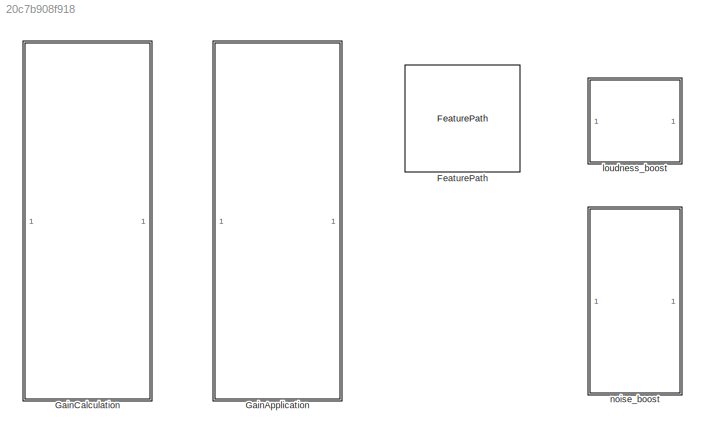
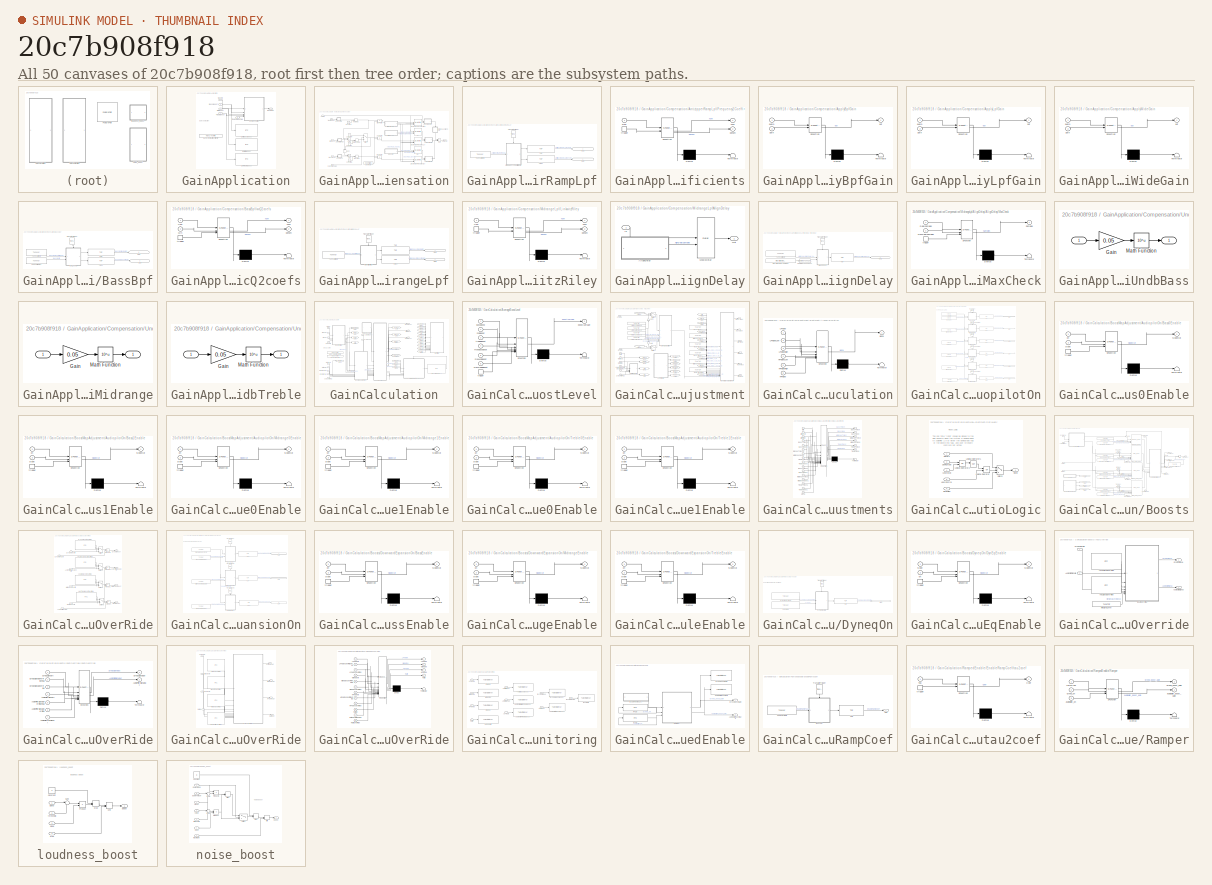
[diagram: thumbnail index - all 50 canvases of the model, root first then tree order]
MODEL slx_20c7b908f918
KIND library
CONFIG AbsTol = auto
CONFIG EnableMultiTasking = off
CONFIG FixedStep = auto
CONFIG InitFcn = Compensation_init;
CONFIG MaxStep = auto
CONFIG MinStep = auto
CONFIG PreLoadFcn = if (~exist('AUDIOPILOT_NUM_MUSIC_IN','var'))\n   AUDIOPILOT_NUM_MUSIC_IN = 6;\nend\n
CONFIG RelTol = 1e-3
CONFIG SampleTimeConstraint = Unconstrained
CONFIG SolverName = VariableStepAuto
CONFIG StartTime = 0.0
CONFIG StopTime = 10.0
BLOCK [Reference] FeaturePath  REF=FeaturePath/FeaturePath
  SourceBlock = FeaturePath/FeaturePath
  SourceProductName = Bose Talaria
  SourceType = Talaria Feature Path
BLOCK [SubSystem] GainApplication
BLOCK [Inport] GainApplication/BassBoost
  Port = 2
BLOCK [SubSystem] GainApplication/Compensation
BLOCK [Sum] GainApplication/Compensation/Add
  IconShape = rectangular
  Inputs = -+
BLOCK [Sum] GainApplication/Compensation/Add1
  IconShape = rectangular
  Inputs = -+
BLOCK [Sum] GainApplication/Compensation/Add2
  IconShape = rectangular
  NameLocation = left
BLOCK [SubSystem] GainApplication/Compensation/AntizipperRampLpf
BLOCK [SubSystem] GainApplication/Compensation/AntizipperRampLpf/Frequency2Coefficients
  ErrorFcn = Stateflow.Translate.translate
  PermitHierarchicalResolution = ExplicitOnly
  SFBlockType = MATLAB Function
  TreatAsAtomicUnit = on
BLOCK [Demux] GainApplication/Compensation/AntizipperRampLpf/Frequency2Coefficients/ Demux 
  Outputs = 1
BLOCK [S-Function] GainApplication/Compensation/AntizipperRampLpf/Frequency2Coefficients/ SFunction 
  EnableBusSupport = off
  FunctionName = sf_sfun
  Parameters = SampleRate
  PortCounts = [2 3]
  SFcnIsStateOwnerBlock = off
  SFunctionDeploymentMode = off
  Tag = Stateflow S-Function 3
BLOCK [Terminator] GainApplication/Compensation/AntizipperRampLpf/Frequency2Coefficients/ Terminator 
BLOCK [Inport] GainApplication/Compensation/AntizipperRampLpf/Frequency2Coefficients/Freq
BLOCK [Outport] GainApplication/Compensation/AntizipperRampLpf/Frequency2Coefficients/denom
  Port = 2
  VectorParamsAs1DForOutWhenUnconnected = off
BLOCK [Outport] GainApplication/Compensation/AntizipperRampLpf/Frequency2Coefficients/num
  VectorParamsAs1DForOutWhenUnconnected = off
BLOCK [TriggerPort] GainApplication/Compensation/AntizipperRampLpf/Frequency2Coefficients/trigger
  ShowOutputPort = on
  StatesWhenEnabling = held
  TriggerType = function-call
  VariantControl = Variant
BLOCK [Outport] GainApplication/Compensation/AntizipperRampLpf/Out1
  IconDisplay = Signal name
  VectorParamsAs1DForOutWhenUnconnected = off
BLOCK [Outport] GainApplication/Compensation/AntizipperRampLpf/Out2
  IconDisplay = Signal name
  Port = 2
  VectorParamsAs1DForOutWhenUnconnected = off
BLOCK [Reference] GainApplication/Compensation/AntizipperRampLpf/TOP  REF=TOP/TOP
  SourceBlock = TOP/TOP
  SourceProductName = Bose Talaria
  SourceType = Talaria Target Overlay Parameter
BLOCK [Reference] GainApplication/Compensation/AntizipperRampLpf/TOP1  REF=TOP/TOP
  SourceBlock = TOP/TOP
  SourceProductName = Bose Talaria
  SourceType = Talaria Target Overlay Parameter
BLOCK [Reference] GainApplication/Compensation/AntizipperRampLpf/TranslateTrigger  REF=TuneVar/TranslateTrigger
  NameLocation = left
  SourceBlock = TuneVar/TranslateTrigger
  SourceProductName = Bose Talaria
  SourceType = Talaria Translate Trigger
BLOCK [Reference] GainApplication/Compensation/AntizipperRampLpf/Tune Variable  REF=TuneVar/TuneVar
  SourceBlock = TuneVar/TuneVar
  SourceProductName = Bose Talaria
  SourceType = Talaria Tune Variable
BLOCK [SubSystem] GainApplication/Compensation/ApplyBpfGain
  ErrorFcn = Stateflow.Translate.translate
  PermitHierarchicalResolution = ExplicitOnly
  SFBlockType = MATLAB Function
  TreatAsAtomicUnit = on
BLOCK [Demux] GainApplication/Compensation/ApplyBpfGain/ Demux 
  Outputs = 1
BLOCK [S-Function] GainApplication/Compensation/ApplyBpfGain/ SFunction 
  EnableBusSupport = off
  FunctionName = sf_sfun
  PortCounts = [2 2]
  SFcnIsStateOwnerBlock = off
  SFunctionDeploymentMode = off
  Tag = Stateflow S-Function 23
BLOCK [Terminator] GainApplication/Compensation/ApplyBpfGain/ Terminator 
BLOCK [Inport] GainApplication/Compensation/ApplyBpfGain/audio
BLOCK [Inport] GainApplication/Compensation/ApplyBpfGain/gain
  Port = 2
BLOCK [Outport] GainApplication/Compensation/ApplyBpfGain/out
BLOCK [SubSystem] GainApplication/Compensation/ApplyLpfGain
  ErrorFcn = Stateflow.Translate.translate
  PermitHierarchicalResolution = ExplicitOnly
  SFBlockType = MATLAB Function
  TreatAsAtomicUnit = on
BLOCK [Demux] GainApplication/Compensation/ApplyLpfGain/ Demux 
  Outputs = 1
BLOCK [S-Function] GainApplication/Compensation/ApplyLpfGain/ SFunction 
  EnableBusSupport = off
  FunctionName = sf_sfun
  PortCounts = [2 2]
  SFcnIsStateOwnerBlock = off
  SFunctionDeploymentMode = off
  Tag = Stateflow S-Function 19
BLOCK [Terminator] GainApplication/Compensation/ApplyLpfGain/ Terminator 
BLOCK [Inport] GainApplication/Compensation/ApplyLpfGain/audio
BLOCK [Inport] GainApplication/Compensation/ApplyLpfGain/gain
  Port = 2
BLOCK [Outport] GainApplication/Compensation/ApplyLpfGain/out
BLOCK [SubSystem] GainApplication/Compensation/ApplyWideGain
  ErrorFcn = Stateflow.Translate.translate
  PermitHierarchicalResolution = ExplicitOnly
  SFBlockType = MATLAB Function
  TreatAsAtomicUnit = on
BLOCK [Demux] GainApplication/Compensation/ApplyWideGain/ Demux 
  Outputs = 1
BLOCK [S-Function] GainApplication/Compensation/ApplyWideGain/ SFunction 
  EnableBusSupport = off
  FunctionName = sf_sfun
  PortCounts = [2 2]
  SFcnIsStateOwnerBlock = off
  SFunctionDeploymentMode = off
  Tag = Stateflow S-Function 22
BLOCK [Terminator] GainApplication/Compensation/ApplyWideGain/ Terminator 
BLOCK [Inport] GainApplication/Compensation/ApplyWideGain/audio
BLOCK [Inport] GainApplication/Compensation/ApplyWideGain/gain
  Port = 2
BLOCK [Outport] GainApplication/Compensation/ApplyWideGain/out
BLOCK [Inport] GainApplication/Compensation/AudioIn
BLOCK [Outport] GainApplication/Compensation/AudioOut
  VectorParamsAs1DForOutWhenUnconnected = off
BLOCK [Product] GainApplication/Compensation/BPFFramify
  InputSameDT = on
  OutDataTypeStr = Inherit: Same as first input
  SaturateOnIntegerOverflow = on
BLOCK [Inport] GainApplication/Compensation/BassBoost
  Port = 2
BLOCK [SubSystem] GainApplication/Compensation/BassBpf
BLOCK [Outport] GainApplication/Compensation/BassBpf/Out1
  IconDisplay = Signal name
  VectorParamsAs1DForOutWhenUnconnected = off
BLOCK [Outport] GainApplication/Compensation/BassBpf/Out2
  IconDisplay = Signal name
  Port = 2
  VectorParamsAs1DForOutWhenUnconnected = off
BLOCK [Reference] GainApplication/Compensation/BassBpf/TOP  REF=TOP/TOP
  SourceBlock = TOP/TOP
  SourceProductName = Bose Talaria
  SourceType = Talaria Target Overlay Parameter
BLOCK [Reference] GainApplication/Compensation/BassBpf/TOP1  REF=TOP/TOP
  SourceBlock = TOP/TOP
  SourceProductName = Bose Talaria
  SourceType = Talaria Target Overlay Parameter
BLOCK [Reference] GainApplication/Compensation/BassBpf/TranslateTrigger  REF=TuneVar/TranslateTrigger
  NameLocation = left
  SourceBlock = TuneVar/TranslateTrigger
  SourceProductName = Bose Talaria
  SourceType = Talaria Translate Trigger
BLOCK [Reference] GainApplication/Compensation/BassBpf/Tune Variable  REF=TuneVar/TuneVar
  SourceBlock = TuneVar/TuneVar
  SourceProductName = Bose Talaria
  SourceType = Talaria Tune Variable
BLOCK [Reference] GainApplication/Compensation/BassBpf/Tune Variable1  REF=TuneVar/TuneVar
  SourceBlock = TuneVar/TuneVar
  SourceProductName = Bose Talaria
  SourceType = Talaria Tune Variable
BLOCK [SubSystem] GainApplication/Compensation/BassBpf/wcQ2coefs
  ErrorFcn = Stateflow.Translate.translate
  PermitHierarchicalResolution = ExplicitOnly
  SFBlockType = MATLAB Function
  TreatAsAtomicUnit = on
BLOCK [Demux] GainApplication/Compensation/BassBpf/wcQ2coefs/ Demux 
  Outputs = 1
BLOCK [S-Function] GainApplication/Compensation/BassBpf/wcQ2coefs/ SFunction 
  EnableBusSupport = off
  FunctionName = sf_sfun
  Parameters = SampleRate
  PortCounts = [3 3]
  SFcnIsStateOwnerBlock = off
  SFunctionDeploymentMode = off
  Tag = Stateflow S-Function 1
BLOCK [Terminator] GainApplication/Compensation/BassBpf/wcQ2coefs/ Terminator 
BLOCK [Inport] GainApplication/Compensation/BassBpf/wcQ2coefs/Qin
  Port = 2
BLOCK [Outport] GainApplication/Compensation/BassBpf/wcQ2coefs/denom
  Port = 2
  VectorParamsAs1DForOutWhenUnconnected = off
BLOCK [Inport] GainApplication/Compensation/BassBpf/wcQ2coefs/freq
BLOCK [Outport] GainApplication/Compensation/BassBpf/wcQ2coefs/num
  VectorParamsAs1DForOutWhenUnconnected = off
BLOCK [TriggerPort] GainApplication/Compensation/BassBpf/wcQ2coefs/trigger
  ShowOutputPort = on
  StatesWhenEnabling = held
  TriggerType = function-call
  VariantControl = Variant
BLOCK [MinMax] GainApplication/Compensation/BassMax
  Function = max
  Inputs = 2
BLOCK [DiscreteFilter] GainApplication/Compensation/Bpf
  DenominatorSource = Input port
  FilterStructure = Direct form II transposed
  InputPortMap = u0,p1,p3
  InputProcessing = Columns as channels (frame based)
  NumeratorSource = Input port
  a0EqualsOne = on
BLOCK [Constant] GainApplication/Compensation/Constant
  OutDataTypeStr = single
  Value = 0
BLOCK [Constant] GainApplication/Compensation/Constant1
  OutDataTypeStr = single
  Value = 0
BLOCK [Constant] GainApplication/Compensation/Constant3
  OutDataTypeStr = single
  Value = 0
BLOCK [Constant] GainApplication/Compensation/Constant4
  OutDataTypeStr = single
  Value = 0
BLOCK [Inport] GainApplication/Compensation/DowngradeFlag
  Port = 5
BLOCK [Product] GainApplication/Compensation/LPFFramify
  InputSameDT = on
  OutDataTypeStr = Inherit: Same as first input
  SaturateOnIntegerOverflow = on
BLOCK [DiscreteFilter] GainApplication/Compensation/Lpf
  DenominatorSource = Input port
  FilterStructure = Direct form II transposed
  InputPortMap = u0,p1,p3
  InputProcessing = Columns as channels (frame based)
  NumeratorSource = Input port
  a0EqualsOne = on
BLOCK [Inport] GainApplication/Compensation/MidBoost
  Port = 3
BLOCK [SubSystem] GainApplication/Compensation/MidrangeLpf
BLOCK [SubSystem] GainApplication/Compensation/MidrangeLpf/LinkwitzRiley
  ErrorFcn = Stateflow.Translate.translate
  PermitHierarchicalResolution = ExplicitOnly
  SFBlockType = MATLAB Function
  TreatAsAtomicUnit = on
BLOCK [Demux] GainApplication/Compensation/MidrangeLpf/LinkwitzRiley/ Demux 
  Outputs = 1
BLOCK [S-Function] GainApplication/Compensation/MidrangeLpf/LinkwitzRiley/ SFunction 
  EnableBusSupport = off
  FunctionName = sf_sfun
  Parameters = SampleRate
  PortCounts = [2 3]
  SFcnIsStateOwnerBlock = off
  SFunctionDeploymentMode = off
  Tag = Stateflow S-Function 2
BLOCK [Terminator] GainApplication/Compensation/MidrangeLpf/LinkwitzRiley/ Terminator 
BLOCK [Outport] GainApplication/Compensation/MidrangeLpf/LinkwitzRiley/denom
  Port = 2
  VectorParamsAs1DForOutWhenUnconnected = off
BLOCK [Inport] GainApplication/Compensation/MidrangeLpf/LinkwitzRiley/freq
BLOCK [Outport] GainApplication/Compensation/MidrangeLpf/LinkwitzRiley/num
  VectorParamsAs1DForOutWhenUnconnected = off
BLOCK [TriggerPort] GainApplication/Compensation/MidrangeLpf/LinkwitzRiley/trigger
  ShowOutputPort = on
  StatesWhenEnabling = held
  TriggerType = function-call
  VariantControl = Variant
BLOCK [Outport] GainApplication/Compensation/MidrangeLpf/Out1
  IconDisplay = Signal name
  VectorParamsAs1DForOutWhenUnconnected = off
BLOCK [Outport] GainApplication/Compensation/MidrangeLpf/Out2
  IconDisplay = Signal name
  Port = 2
  VectorParamsAs1DForOutWhenUnconnected = off
BLOCK [Reference] GainApplication/Compensation/MidrangeLpf/TOP  REF=TOP/TOP
  SourceBlock = TOP/TOP
  SourceProductName = Bose Talaria
  SourceType = Talaria Target Overlay Parameter
BLOCK [Reference] GainApplication/Compensation/MidrangeLpf/TOP1  REF=TOP/TOP
  SourceBlock = TOP/TOP
  SourceProductName = Bose Talaria
  SourceType = Talaria Target Overlay Parameter
BLOCK [Reference] GainApplication/Compensation/MidrangeLpf/TranslateTrigger  REF=TuneVar/TranslateTrigger
  NameLocation = left
  SourceBlock = TuneVar/TranslateTrigger
  SourceProductName = Bose Talaria
  SourceType = Talaria Translate Trigger
BLOCK [Reference] GainApplication/Compensation/MidrangeLpf/Tune Variable  REF=TuneVar/TuneVar
  SourceBlock = TuneVar/TuneVar
  SourceProductName = Bose Talaria
  SourceType = Talaria Tune Variable
BLOCK [SubSystem] GainApplication/Compensation/MidrangeLpfAlignDelay
  NameLocation = left
BLOCK [SubSystem] GainApplication/Compensation/MidrangeLpfAlignDelay/AlignDelay
BLOCK [Reference] GainApplication/Compensation/MidrangeLpfAlignDelay/AlignDelay/Captured Tune Const  REF=TuneVar/CapturedTuneConst
  SourceBlock = TuneVar/CapturedTuneConst
  SourceProductName = Bose Talaria
  SourceType = Talaria Captured Constant
BLOCK [Constant] GainApplication/Compensation/MidrangeLpfAlignDelay/AlignDelay/MaxAlignDelaySamples
  OutDataTypeStr = int32
  Value = MaxAlignDelaySamples
BLOCK [SubSystem] GainApplication/Compensation/MidrangeLpfAlignDelay/AlignDelay/MaxCheck
  ErrorFcn = Stateflow.Translate.translate
  PermitHierarchicalResolution = ExplicitOnly
  SFBlockType = MATLAB Function
  TreatAsAtomicUnit = on
BLOCK [Demux] GainApplication/Compensation/MidrangeLpfAlignDelay/AlignDelay/MaxCheck/ Demux 
  Outputs = 1
BLOCK [S-Function] GainApplication/Compensation/MidrangeLpfAlignDelay/AlignDelay/MaxCheck/ SFunction 
  EnableBusSupport = off
  FunctionName = sf_sfun
  PortCounts = [3 2]
  SFcnIsStateOwnerBlock = off
  SFunctionDeploymentMode = off
  Tag = Stateflow S-Function 24
BLOCK [Terminator] GainApplication/Compensation/MidrangeLpfAlignDelay/AlignDelay/MaxCheck/ Terminator 
BLOCK [Inport] GainApplication/Compensation/MidrangeLpfAlignDelay/AlignDelay/MaxCheck/DelaySamples
BLOCK [Inport] GainApplication/Compensation/MidrangeLpfAlignDelay/AlignDelay/MaxCheck/MaxDelaySamples
  Port = 2
BLOCK [Outport] GainApplication/Compensation/MidrangeLpfAlignDelay/AlignDelay/MaxCheck/Samples
  VectorParamsAs1DForOutWhenUnconnected = off
BLOCK [TriggerPort] GainApplication/Compensation/MidrangeLpfAlignDelay/AlignDelay/MaxCheck/trigger
  ShowOutputPort = on
  StatesWhenEnabling = held
  TriggerType = function-call
  VariantControl = (inherit)
BLOCK [Outport] GainApplication/Compensation/MidrangeLpfAlignDelay/AlignDelay/Out1
  IconDisplay = Signal name
  VectorParamsAs1DForOutWhenUnconnected = off
BLOCK [Reference] GainApplication/Compensation/MidrangeLpfAlignDelay/AlignDelay/TOP  REF=TOP/TOP
  SourceBlock = TOP/TOP
  SourceProductName = Bose Talaria
  SourceType = Talaria Target Overlay Parameter
BLOCK [Reference] GainApplication/Compensation/MidrangeLpfAlignDelay/AlignDelay/TranslateTrigger  REF=TuneVar/TranslateTrigger
  NameLocation = left
  SourceBlock = TuneVar/TranslateTrigger
  SourceProductName = Bose Talaria
  SourceType = Talaria Translate Trigger
BLOCK [Reference] GainApplication/Compensation/MidrangeLpfAlignDelay/AlignDelay/Tune Variable  REF=TuneVar/TuneVar
  SourceBlock = TuneVar/TuneVar
  SourceProductName = Bose Talaria
  SourceType = Talaria Tune Variable
BLOCK [Inport] GainApplication/Compensation/MidrangeLpfAlignDelay/In
BLOCK [Reference] GainApplication/Compensation/MidrangeLpfAlignDelay/MusicDelay  REF=TunableDelay/Delay
  SourceBlock = TunableDelay/Delay
  SourceType = Fixed Alignment Delay
BLOCK [Outport] GainApplication/Compensation/MidrangeLpfAlignDelay/Out
BLOCK [MinMax] GainApplication/Compensation/MidrangeMax
  Function = max
  Inputs = 2
BLOCK [Constant] GainApplication/Compensation/OneFrame
  OutDataTypeStr = single
  Value = oneFrame
  VectorParams1D = off
BLOCK [Sum] GainApplication/Compensation/Sum
  IconShape = rectangular
  Inputs = +++
BLOCK [Switch] GainApplication/Compensation/Switch
  Criteria = u2 ~= 0
  InputSameDT = off
  SaturateOnIntegerOverflow = off
BLOCK [Inport] GainApplication/Compensation/TrebleBoost
  Port = 4
BLOCK [MinMax] GainApplication/Compensation/TrebleMax
  Function = max
  Inputs = 2
BLOCK [SubSystem] GainApplication/Compensation/UndbBass
BLOCK [Inport] GainApplication/Compensation/UndbBass/ 
BLOCK [Outport] GainApplication/Compensation/UndbBass/  
  VectorParamsAs1DForOutWhenUnconnected = off
BLOCK [Gain] GainApplication/Compensation/UndbBass/Gain
  Gain = 0.05
  OutDataTypeStr = Inherit: Same as input
  ParamDataTypeStr = Inherit: Same as input
  SaturateOnIntegerOverflow = on
BLOCK [Math] GainApplication/Compensation/UndbBass/Math Function
  Operator = 10^u
  SignedPower = on
BLOCK [SubSystem] GainApplication/Compensation/UndbMidrange
BLOCK [Inport] GainApplication/Compensation/UndbMidrange/ 
BLOCK [Outport] GainApplication/Compensation/UndbMidrange/  
  VectorParamsAs1DForOutWhenUnconnected = off
BLOCK [Gain] GainApplication/Compensation/UndbMidrange/Gain
  Gain = 0.05
  OutDataTypeStr = Inherit: Same as input
  ParamDataTypeStr = Inherit: Same as input
  SaturateOnIntegerOverflow = on
BLOCK [Math] GainApplication/Compensation/UndbMidrange/Math Function
  Operator = 10^u
  SignedPower = on
BLOCK [SubSystem] GainApplication/Compensation/UndbTreble
BLOCK [Inport] GainApplication/Compensation/UndbTreble/ 
BLOCK [Outport] GainApplication/Compensation/UndbTreble/  
  VectorParamsAs1DForOutWhenUnconnected = off
BLOCK [Gain] GainApplication/Compensation/UndbTreble/Gain
  Gain = 0.05
  OutDataTypeStr = Inherit: Same as input
  ParamDataTypeStr = Inherit: Same as input
  SaturateOnIntegerOverflow = on
BLOCK [Math] GainApplication/Compensation/UndbTreble/Math Function
  Operator = 10^u
  SignedPower = on
BLOCK [Product] GainApplication/Compensation/WideFramify
  InputSameDT = on
  SaturateOnIntegerOverflow = on
BLOCK [DiscreteFilter] GainApplication/Compensation/ZipperNoiseReductionBpf
  DenominatorSource = Input port
  FilterStructure = Direct form II transposed
  InputPortMap = u0,p1,p3
  InputProcessing = Columns as channels (frame based)
  NumeratorSource = Input port
  a0EqualsOne = on
BLOCK [DiscreteFilter] GainApplication/Compensation/ZipperNoiseReductionLpf
  DenominatorSource = Input port
  FilterStructure = Direct form II transposed
  InputPortMap = u0,p1,p3
  InputProcessing = Columns as channels (frame based)
  NumeratorSource = Input port
  a0EqualsOne = on
BLOCK [DiscreteFilter] GainApplication/Compensation/ZipperNoiseReductionWide
  DenominatorSource = Input port
  FilterStructure = Direct form II transposed
  InputPortMap = u0,p1,p3
  InputProcessing = Columns as channels (frame based)
  NumeratorSource = Input port
  a0EqualsOne = on
BLOCK [Inport] GainApplication/DowngradeFlag
  Port = 5
BLOCK [Reference] GainApplication/GetBassBoost  REF=RTC/RTC
  SourceBlock = RTC/RTC
  SourceProductName = Bose Talaria
  SourceType = Talaria RTC Receive
BLOCK [Reference] GainApplication/GetMidBoost  REF=RTC/RTC
  SourceBlock = RTC/RTC
  SourceProductName = Bose Talaria
  SourceType = Talaria RTC Receive
BLOCK [Reference] GainApplication/GetTrebleBoost  REF=RTC/RTC
  SourceBlock = RTC/RTC
  SourceProductName = Bose Talaria
  SourceType = Talaria RTC Receive
BLOCK [Reference] GainApplication/HandyDefaultConfigFile  REF=HandyTextFile/HandyTextFile
  SourceBlock = HandyTextFile/HandyTextFile
  SourceProductName = Bose Talaria
  SourceType = Talaria Handy Text File
BLOCK [Inport] GainApplication/MidBoost
  Port = 3
BLOCK [Inport] GainApplication/MusicIn
BLOCK [Outport] GainApplication/MusicOut
  VectorParamsAs1DForOutWhenUnconnected = off
BLOCK [Inport] GainApplication/TrebleBoost
  Port = 4
BLOCK [SubSystem] GainCalculation
BLOCK [Inport] GainCalculation/AudiopilotLevel
  Port = 5
BLOCK [SubSystem] GainCalculation/AverageBoostLevel
  ErrorFcn = Stateflow.Translate.translate
  PermitHierarchicalResolution = ExplicitOnly
  SFBlockType = MATLAB Function
  TreatAsAtomicUnit = on
BLOCK [Demux] GainCalculation/AverageBoostLevel/ Demux 
  Outputs = 1
BLOCK [S-Function] GainCalculation/AverageBoostLevel/ SFunction 
  EnableBusSupport = off
  FunctionName = sf_sfun
  PortCounts = [7 2]
  SFcnIsStateOwnerBlock = off
  SFunctionDeploymentMode = off
  Tag = Stateflow S-Function 10
BLOCK [Terminator] GainCalculation/AverageBoostLevel/ Terminator 
BLOCK [Inport] GainCalculation/AverageBoostLevel/bassBoost
BLOCK [Outport] GainCalculation/AverageBoostLevel/boostAverage
  VectorParamsAs1DForOutWhenUnconnected = off
BLOCK [Inport] GainCalculation/AverageBoostLevel/maxBassBoost
  Port = 4
BLOCK [Inport] GainCalculation/AverageBoostLevel/maxMidBoost
  Port = 5
BLOCK [Inport] GainCalculation/AverageBoostLevel/maxTrebleBoost
  Port = 6
BLOCK [Inport] GainCalculation/AverageBoostLevel/midBoost
  Port = 2
BLOCK [Inport] GainCalculation/AverageBoostLevel/trebleBoost
  Port = 3
BLOCK [TriggerPort] GainCalculation/AverageBoostLevel/trigger
  ShowOutputPort = on
  StatesWhenEnabling = held
  TriggerType = function-call
  VariantControl = Variant
BLOCK [Outport] GainCalculation/BassBoost
  VectorParamsAs1DForOutWhenUnconnected = off
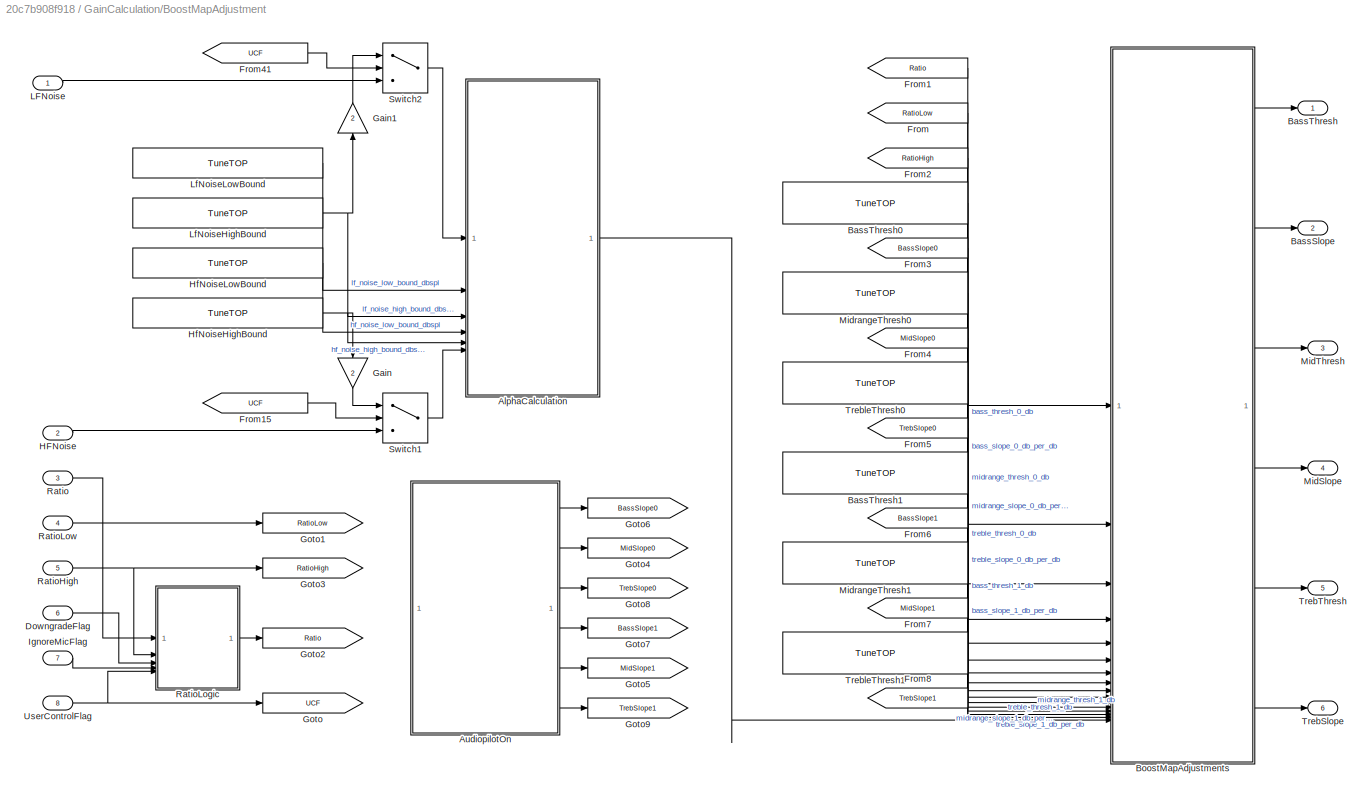
BLOCK [SubSystem] GainCalculation/BoostMapAdjustment
BLOCK [SubSystem] GainCalculation/BoostMapAdjustment/AlphaCalculation
  ErrorFcn = Stateflow.Translate.translate
  PermitHierarchicalResolution = ExplicitOnly
  SFBlockType = MATLAB Function
  TreatAsAtomicUnit = on
BLOCK [Demux] GainCalculation/BoostMapAdjustment/AlphaCalculation/ Demux 
  Outputs = 1
BLOCK [S-Function] GainCalculation/BoostMapAdjustment/AlphaCalculation/ SFunction 
  EnableBusSupport = off
  FunctionName = sf_sfun
  PortCounts = [6 2]
  SFcnIsStateOwnerBlock = off
  SFunctionDeploymentMode = off
  Tag = Stateflow S-Function 16
BLOCK [Terminator] GainCalculation/BoostMapAdjustment/AlphaCalculation/ Terminator 
BLOCK [Inport] GainCalculation/BoostMapAdjustment/AlphaCalculation/HFNoise
  Port = 6
BLOCK [Inport] GainCalculation/BoostMapAdjustment/AlphaCalculation/HFNoiseHigh
  Port = 5
BLOCK [Inport] GainCalculation/BoostMapAdjustment/AlphaCalculation/HFNoiseLow
  Port = 4
BLOCK [Inport] GainCalculation/BoostMapAdjustment/AlphaCalculation/LFNoiseHigh
  Port = 3
BLOCK [Inport] GainCalculation/BoostMapAdjustment/AlphaCalculation/LFNoiseLow
  Port = 2
BLOCK [Inport] GainCalculation/BoostMapAdjustment/AlphaCalculation/LFnoise
BLOCK [Outport] GainCalculation/BoostMapAdjustment/AlphaCalculation/alpha
  VectorParamsAs1DForOutWhenUnconnected = off
BLOCK [SubSystem] GainCalculation/BoostMapAdjustment/AudiopilotOn
BLOCK [Reference] GainCalculation/BoostMapAdjustment/AudiopilotOn/AudiopilotOn  REF=TuneVar/TuneVar
  SourceBlock = TuneVar/TuneVar
  SourceProductName = Bose Talaria
  SourceType = Talaria Tune Variable
BLOCK [SubSystem] GainCalculation/BoostMapAdjustment/AudiopilotOn/Bass0Enable
  ErrorFcn = Stateflow.Translate.translate
  PermitHierarchicalResolution = ExplicitOnly
  SFBlockType = MATLAB Function
  TreatAsAtomicUnit = on
BLOCK [Demux] GainCalculation/BoostMapAdjustment/AudiopilotOn/Bass0Enable/ Demux 
  Outputs = 1
BLOCK [S-Function] GainCalculation/BoostMapAdjustment/AudiopilotOn/Bass0Enable/ SFunction 
  EnableBusSupport = off
  FunctionName = sf_sfun
  PortCounts = [3 2]
  SFcnIsStateOwnerBlock = off
  SFunctionDeploymentMode = off
  Tag = Stateflow S-Function 4
BLOCK [Terminator] GainCalculation/BoostMapAdjustment/AudiopilotOn/Bass0Enable/ Terminator 
BLOCK [Inport] GainCalculation/BoostMapAdjustment/AudiopilotOn/Bass0Enable/on
BLOCK [Inport] GainCalculation/BoostMapAdjustment/AudiopilotOn/Bass0Enable/slope
  Port = 2
BLOCK [Outport] GainCalculation/BoostMapAdjustment/AudiopilotOn/Bass0Enable/slopeOut
  VectorParamsAs1DForOutWhenUnconnected = off
BLOCK [TriggerPort] GainCalculation/BoostMapAdjustment/AudiopilotOn/Bass0Enable/trigger
  ShowOutputPort = on
  StatesWhenEnabling = held
  TriggerType = function-call
  VariantControl = Variant
BLOCK [SubSystem] GainCalculation/BoostMapAdjustment/AudiopilotOn/Bass1Enable
  ErrorFcn = Stateflow.Translate.translate
  PermitHierarchicalResolution = ExplicitOnly
  SFBlockType = MATLAB Function
  TreatAsAtomicUnit = on
BLOCK [Demux] GainCalculation/BoostMapAdjustment/AudiopilotOn/Bass1Enable/ Demux 
  Outputs = 1
BLOCK [S-Function] GainCalculation/BoostMapAdjustment/AudiopilotOn/Bass1Enable/ SFunction 
  EnableBusSupport = off
  FunctionName = sf_sfun
  PortCounts = [3 2]
  SFcnIsStateOwnerBlock = off
  SFunctionDeploymentMode = off
  Tag = Stateflow S-Function 18
BLOCK [Terminator] GainCalculation/BoostMapAdjustment/AudiopilotOn/Bass1Enable/ Terminator 
BLOCK [Inport] GainCalculation/BoostMapAdjustment/AudiopilotOn/Bass1Enable/on
BLOCK [Inport] GainCalculation/BoostMapAdjustment/AudiopilotOn/Bass1Enable/slope
  Port = 2
BLOCK [Outport] GainCalculation/BoostMapAdjustment/AudiopilotOn/Bass1Enable/slopeOut
  VectorParamsAs1DForOutWhenUnconnected = off
BLOCK [TriggerPort] GainCalculation/BoostMapAdjustment/AudiopilotOn/Bass1Enable/trigger
  ShowOutputPort = on
  StatesWhenEnabling = held
  TriggerType = function-call
  VariantControl = Variant
BLOCK [Reference] GainCalculation/BoostMapAdjustment/AudiopilotOn/BassSlope0  REF=TuneVar/TuneVar
  SourceBlock = TuneVar/TuneVar
  SourceProductName = Bose Talaria
  SourceType = Talaria Tune Variable
BLOCK [Reference] GainCalculation/BoostMapAdjustment/AudiopilotOn/BassSlope1  REF=TuneVar/TuneVar
  SourceBlock = TuneVar/TuneVar
  SourceProductName = Bose Talaria
  SourceType = Talaria Tune Variable
BLOCK [SubSystem] GainCalculation/BoostMapAdjustment/AudiopilotOn/Midrange0Enable
  ErrorFcn = Stateflow.Translate.translate
  PermitHierarchicalResolution = ExplicitOnly
  SFBlockType = MATLAB Function
  TreatAsAtomicUnit = on
BLOCK [Demux] GainCalculation/BoostMapAdjustment/AudiopilotOn/Midrange0Enable/ Demux 
  Outputs = 1
BLOCK [S-Function] GainCalculation/BoostMapAdjustment/AudiopilotOn/Midrange0Enable/ SFunction 
  EnableBusSupport = off
  FunctionName = sf_sfun
  PortCounts = [3 2]
  SFcnIsStateOwnerBlock = off
  SFunctionDeploymentMode = off
  Tag = Stateflow S-Function 7
BLOCK [Terminator] GainCalculation/BoostMapAdjustment/AudiopilotOn/Midrange0Enable/ Terminator 
BLOCK [Inport] GainCalculation/BoostMapAdjustment/AudiopilotOn/Midrange0Enable/on
BLOCK [Inport] GainCalculation/BoostMapAdjustment/AudiopilotOn/Midrange0Enable/slope
  Port = 2
BLOCK [Outport] GainCalculation/BoostMapAdjustment/AudiopilotOn/Midrange0Enable/slopeOut
  VectorParamsAs1DForOutWhenUnconnected = off
BLOCK [TriggerPort] GainCalculation/BoostMapAdjustment/AudiopilotOn/Midrange0Enable/trigger
  ShowOutputPort = on
  StatesWhenEnabling = held
  TriggerType = function-call
  VariantControl = Variant
BLOCK [SubSystem] GainCalculation/BoostMapAdjustment/AudiopilotOn/Midrange1Enable
  ErrorFcn = Stateflow.Translate.translate
  PermitHierarchicalResolution = ExplicitOnly
  SFBlockType = MATLAB Function
  TreatAsAtomicUnit = on
BLOCK [Demux] GainCalculation/BoostMapAdjustment/AudiopilotOn/Midrange1Enable/ Demux 
  Outputs = 1
BLOCK [S-Function] GainCalculation/BoostMapAdjustment/AudiopilotOn/Midrange1Enable/ SFunction 
  EnableBusSupport = off
  FunctionName = sf_sfun
  PortCounts = [3 2]
  SFcnIsStateOwnerBlock = off
  SFunctionDeploymentMode = off
  Tag = Stateflow S-Function 20
BLOCK [Terminator] GainCalculation/BoostMapAdjustment/AudiopilotOn/Midrange1Enable/ Terminator 
BLOCK [Inport] GainCalculation/BoostMapAdjustment/AudiopilotOn/Midrange1Enable/on
BLOCK [Inport] GainCalculation/BoostMapAdjustment/AudiopilotOn/Midrange1Enable/slope
  Port = 2
BLOCK [Outport] GainCalculation/BoostMapAdjustment/AudiopilotOn/Midrange1Enable/slopeOut
  VectorParamsAs1DForOutWhenUnconnected = off
BLOCK [TriggerPort] GainCalculation/BoostMapAdjustment/AudiopilotOn/Midrange1Enable/trigger
  ShowOutputPort = on
  StatesWhenEnabling = held
  TriggerType = function-call
  VariantControl = Variant
BLOCK [Reference] GainCalculation/BoostMapAdjustment/AudiopilotOn/MidrangeSlope0  REF=TuneVar/TuneVar
  SourceBlock = TuneVar/TuneVar
  SourceProductName = Bose Talaria
  SourceType = Talaria Tune Variable
BLOCK [Reference] GainCalculation/BoostMapAdjustment/AudiopilotOn/MidrangeSlope1  REF=TuneVar/TuneVar
  SourceBlock = TuneVar/TuneVar
  SourceProductName = Bose Talaria
  SourceType = Talaria Tune Variable
BLOCK [Outport] GainCalculation/BoostMapAdjustment/AudiopilotOn/Out1
  IconDisplay = Signal name
  VectorParamsAs1DForOutWhenUnconnected = off
BLOCK [Outport] GainCalculation/BoostMapAdjustment/AudiopilotOn/Out2
  IconDisplay = Signal name
  Port = 2
  VectorParamsAs1DForOutWhenUnconnected = off
BLOCK [Outport] GainCalculation/BoostMapAdjustment/AudiopilotOn/Out3
  IconDisplay = Signal name
  Port = 3
  VectorParamsAs1DForOutWhenUnconnected = off
BLOCK [Outport] GainCalculation/BoostMapAdjustment/AudiopilotOn/Out4
  IconDisplay = Signal name
  Port = 4
  VectorParamsAs1DForOutWhenUnconnected = off
BLOCK [Outport] GainCalculation/BoostMapAdjustment/AudiopilotOn/Out5
  IconDisplay = Signal name
  Port = 5
  VectorParamsAs1DForOutWhenUnconnected = off
BLOCK [Outport] GainCalculation/BoostMapAdjustment/AudiopilotOn/Out6
  IconDisplay = Signal name
  Port = 6
  VectorParamsAs1DForOutWhenUnconnected = off
BLOCK [Reference] GainCalculation/BoostMapAdjustment/AudiopilotOn/TOP  REF=TOP/TOP
  SourceBlock = TOP/TOP
  SourceProductName = Bose Talaria
  SourceType = Talaria Target Overlay Parameter
BLOCK [Reference] GainCalculation/BoostMapAdjustment/AudiopilotOn/TOP1  REF=TOP/TOP
  SourceBlock = TOP/TOP
  SourceProductName = Bose Talaria
  SourceType = Talaria Target Overlay Parameter
BLOCK [Reference] GainCalculation/BoostMapAdjustment/AudiopilotOn/TOP2  REF=TOP/TOP
  SourceBlock = TOP/TOP
  SourceProductName = Bose Talaria
  SourceType = Talaria Target Overlay Parameter
BLOCK [Reference] GainCalculation/BoostMapAdjustment/AudiopilotOn/TOP3  REF=TOP/TOP
  SourceBlock = TOP/TOP
  SourceProductName = Bose Talaria
  SourceType = Talaria Target Overlay Parameter
BLOCK [Reference] GainCalculation/BoostMapAdjustment/AudiopilotOn/TOP4  REF=TOP/TOP
  SourceBlock = TOP/TOP
  SourceProductName = Bose Talaria
  SourceType = Talaria Target Overlay Parameter
BLOCK [Reference] GainCalculation/BoostMapAdjustment/AudiopilotOn/TOP5  REF=TOP/TOP
  SourceBlock = TOP/TOP
  SourceProductName = Bose Talaria
  SourceType = Talaria Target Overlay Parameter
BLOCK [Reference] GainCalculation/BoostMapAdjustment/AudiopilotOn/TranslateTrigger  REF=TuneVar/TranslateTrigger
  NameLocation = left
  SourceBlock = TuneVar/TranslateTrigger
  SourceProductName = Bose Talaria
  SourceType = Talaria Translate Trigger
BLOCK [Reference] GainCalculation/BoostMapAdjustment/AudiopilotOn/TranslateTrigger1  REF=TuneVar/TranslateTrigger
  NameLocation = left
  SourceBlock = TuneVar/TranslateTrigger
  SourceProductName = Bose Talaria
  SourceType = Talaria Translate Trigger
BLOCK [Reference] GainCalculation/BoostMapAdjustment/AudiopilotOn/TranslateTrigger2  REF=TuneVar/TranslateTrigger
  NameLocation = left
  SourceBlock = TuneVar/TranslateTrigger
  SourceProductName = Bose Talaria
  SourceType = Talaria Translate Trigger
BLOCK [Reference] GainCalculation/BoostMapAdjustment/AudiopilotOn/TranslateTrigger3  REF=TuneVar/TranslateTrigger
  NameLocation = left
  SourceBlock = TuneVar/TranslateTrigger
  SourceProductName = Bose Talaria
  SourceType = Talaria Translate Trigger
BLOCK [Reference] GainCalculation/BoostMapAdjustment/AudiopilotOn/TranslateTrigger4  REF=TuneVar/TranslateTrigger
  NameLocation = left
  SourceBlock = TuneVar/TranslateTrigger
  SourceProductName = Bose Talaria
  SourceType = Talaria Translate Trigger
BLOCK [Reference] GainCalculation/BoostMapAdjustment/AudiopilotOn/TranslateTrigger6  REF=TuneVar/TranslateTrigger
  NameLocation = left
  SourceBlock = TuneVar/TranslateTrigger
  SourceProductName = Bose Talaria
  SourceType = Talaria Translate Trigger
BLOCK [SubSystem] GainCalculation/BoostMapAdjustment/AudiopilotOn/Treble0Enable
  ErrorFcn = Stateflow.Translate.translate
  PermitHierarchicalResolution = ExplicitOnly
  SFBlockType = MATLAB Function
  TreatAsAtomicUnit = on
BLOCK [Demux] GainCalculation/BoostMapAdjustment/AudiopilotOn/Treble0Enable/ Demux 
  Outputs = 1
BLOCK [S-Function] GainCalculation/BoostMapAdjustment/AudiopilotOn/Treble0Enable/ SFunction 
  EnableBusSupport = off
  FunctionName = sf_sfun
  PortCounts = [3 2]
  SFcnIsStateOwnerBlock = off
  SFunctionDeploymentMode = off
  Tag = Stateflow S-Function 17
BLOCK [Terminator] GainCalculation/BoostMapAdjustment/AudiopilotOn/Treble0Enable/ Terminator 
BLOCK [Inport] GainCalculation/BoostMapAdjustment/AudiopilotOn/Treble0Enable/on
BLOCK [Inport] GainCalculation/BoostMapAdjustment/AudiopilotOn/Treble0Enable/slope
  Port = 2
BLOCK [Outport] GainCalculation/BoostMapAdjustment/AudiopilotOn/Treble0Enable/slopeOut
  VectorParamsAs1DForOutWhenUnconnected = off
BLOCK [TriggerPort] GainCalculation/BoostMapAdjustment/AudiopilotOn/Treble0Enable/trigger
  ShowOutputPort = on
  StatesWhenEnabling = held
  TriggerType = function-call
  VariantControl = Variant
BLOCK [SubSystem] GainCalculation/BoostMapAdjustment/AudiopilotOn/Treble1Enable
  ErrorFcn = Stateflow.Translate.translate
  PermitHierarchicalResolution = ExplicitOnly
  SFBlockType = MATLAB Function
  TreatAsAtomicUnit = on
BLOCK [Demux] GainCalculation/BoostMapAdjustment/AudiopilotOn/Treble1Enable/ Demux 
  Outputs = 1
BLOCK [S-Function] GainCalculation/BoostMapAdjustment/AudiopilotOn/Treble1Enable/ SFunction 
  EnableBusSupport = off
  FunctionName = sf_sfun
  PortCounts = [3 2]
  SFcnIsStateOwnerBlock = off
  SFunctionDeploymentMode = off
  Tag = Stateflow S-Function 21
BLOCK [Terminator] GainCalculation/BoostMapAdjustment/AudiopilotOn/Treble1Enable/ Terminator 
BLOCK [Inport] GainCalculation/BoostMapAdjustment/AudiopilotOn/Treble1Enable/on
BLOCK [Inport] GainCalculation/BoostMapAdjustment/AudiopilotOn/Treble1Enable/slope
  Port = 2
BLOCK [Outport] GainCalculation/BoostMapAdjustment/AudiopilotOn/Treble1Enable/slopeOut
  VectorParamsAs1DForOutWhenUnconnected = off
BLOCK [TriggerPort] GainCalculation/BoostMapAdjustment/AudiopilotOn/Treble1Enable/trigger
  ShowOutputPort = on
  StatesWhenEnabling = held
  TriggerType = function-call
  VariantControl = Variant
BLOCK [Reference] GainCalculation/BoostMapAdjustment/AudiopilotOn/TrebleSlope0  REF=TuneVar/TuneVar
  SourceBlock = TuneVar/TuneVar
  SourceProductName = Bose Talaria
  SourceType = Talaria Tune Variable
BLOCK [Reference] GainCalculation/BoostMapAdjustment/AudiopilotOn/TrebleSlope1  REF=TuneVar/TuneVar
  SourceBlock = TuneVar/TuneVar
  SourceProductName = Bose Talaria
  SourceType = Talaria Tune Variable
BLOCK [Outport] GainCalculation/BoostMapAdjustment/BassSlope
  Port = 2
BLOCK [Outport] GainCalculation/BoostMapAdjustment/BassThresh
BLOCK [Reference] GainCalculation/BoostMapAdjustment/BassThresh0  REF=TuneVar/TuneTOP
  SourceBlock = TuneVar/TuneTOP
  SourceProductName = Bose Talaria
  SourceType = Talaria Trivial Tune TOP
BLOCK [Reference] GainCalculation/BoostMapAdjustment/BassThresh1  REF=TuneVar/TuneTOP
  SourceBlock = TuneVar/TuneTOP
  SourceProductName = Bose Talaria
  SourceType = Talaria Trivial Tune TOP
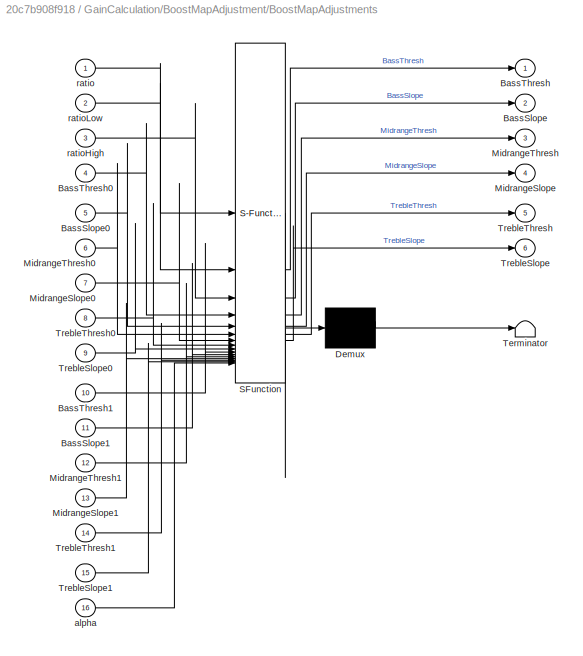
BLOCK [SubSystem] GainCalculation/BoostMapAdjustment/BoostMapAdjustments
  ErrorFcn = Stateflow.Translate.translate
  PermitHierarchicalResolution = ExplicitOnly
  SFBlockType = MATLAB Function
  TreatAsAtomicUnit = on
BLOCK [Demux] GainCalculation/BoostMapAdjustment/BoostMapAdjustments/ Demux 
  Outputs = 1
BLOCK [S-Function] GainCalculation/BoostMapAdjustment/BoostMapAdjustments/ SFunction 
  EnableBusSupport = off
  FunctionName = sf_sfun
  PortCounts = [16 7]
  SFcnIsStateOwnerBlock = off
  SFunctionDeploymentMode = off
  Tag = Stateflow S-Function 9
BLOCK [Terminator] GainCalculation/BoostMapAdjustment/BoostMapAdjustments/ Terminator 
BLOCK [Outport] GainCalculation/BoostMapAdjustment/BoostMapAdjustments/BassSlope
  Port = 2
  VectorParamsAs1DForOutWhenUnconnected = off
BLOCK [Inport] GainCalculation/BoostMapAdjustment/BoostMapAdjustments/BassSlope0
  Port = 5
BLOCK [Inport] GainCalculation/BoostMapAdjustment/BoostMapAdjustments/BassSlope1
  Port = 11
BLOCK [Outport] GainCalculation/BoostMapAdjustment/BoostMapAdjustments/BassThresh
  VectorParamsAs1DForOutWhenUnconnected = off
BLOCK [Inport] GainCalculation/BoostMapAdjustment/BoostMapAdjustments/BassThresh0
  Port = 4
BLOCK [Inport] GainCalculation/BoostMapAdjustment/BoostMapAdjustments/BassThresh1
  Port = 10
BLOCK [Outport] GainCalculation/BoostMapAdjustment/BoostMapAdjustments/MidrangeSlope
  Port = 4
  VectorParamsAs1DForOutWhenUnconnected = off
BLOCK [Inport] GainCalculation/BoostMapAdjustment/BoostMapAdjustments/MidrangeSlope0
  Port = 7
BLOCK [Inport] GainCalculation/BoostMapAdjustment/BoostMapAdjustments/MidrangeSlope1
  Port = 13
BLOCK [Outport] GainCalculation/BoostMapAdjustment/BoostMapAdjustments/MidrangeThresh
  Port = 3
  VectorParamsAs1DForOutWhenUnconnected = off
BLOCK [Inport] GainCalculation/BoostMapAdjustment/BoostMapAdjustments/MidrangeThresh0
  Port = 6
BLOCK [Inport] GainCalculation/BoostMapAdjustment/BoostMapAdjustments/MidrangeThresh1
  Port = 12
BLOCK [Outport] GainCalculation/BoostMapAdjustment/BoostMapAdjustments/TrebleSlope
  Port = 6
  VectorParamsAs1DForOutWhenUnconnected = off
BLOCK [Inport] GainCalculation/BoostMapAdjustment/BoostMapAdjustments/TrebleSlope0
  Port = 9
BLOCK [Inport] GainCalculation/BoostMapAdjustment/BoostMapAdjustments/TrebleSlope1
  Port = 15
BLOCK [Outport] GainCalculation/BoostMapAdjustment/BoostMapAdjustments/TrebleThresh
  Port = 5
  VectorParamsAs1DForOutWhenUnconnected = off
BLOCK [Inport] GainCalculation/BoostMapAdjustment/BoostMapAdjustments/TrebleThresh0
  Port = 8
BLOCK [Inport] GainCalculation/BoostMapAdjustment/BoostMapAdjustments/TrebleThresh1
  Port = 14
BLOCK [Inport] GainCalculation/BoostMapAdjustment/BoostMapAdjustments/alpha
  Port = 16
BLOCK [Inport] GainCalculation/BoostMapAdjustment/BoostMapAdjustments/ratio
BLOCK [Inport] GainCalculation/BoostMapAdjustment/BoostMapAdjustments/ratioHigh
  Port = 3
BLOCK [Inport] GainCalculation/BoostMapAdjustment/BoostMapAdjustments/ratioLow
  Port = 2
BLOCK [Inport] GainCalculation/BoostMapAdjustment/DowngradeFlag
  Port = 6
BLOCK [From] GainCalculation/BoostMapAdjustment/From
  GotoTag = RatioLow
BLOCK [From] GainCalculation/BoostMapAdjustment/From1
  GotoTag = Ratio
BLOCK [From] GainCalculation/BoostMapAdjustment/From15
  GotoTag = UCF
BLOCK [From] GainCalculation/BoostMapAdjustment/From2
  GotoTag = RatioHigh
BLOCK [From] GainCalculation/BoostMapAdjustment/From3
  GotoTag = BassSlope0
BLOCK [From] GainCalculation/BoostMapAdjustment/From4
  GotoTag = MidSlope0
BLOCK [From] GainCalculation/BoostMapAdjustment/From41
  GotoTag = UCF
BLOCK [From] GainCalculation/BoostMapAdjustment/From5
  GotoTag = TrebSlope0
BLOCK [From] GainCalculation/BoostMapAdjustment/From6
  GotoTag = BassSlope1
BLOCK [From] GainCalculation/BoostMapAdjustment/From7
  GotoTag = MidSlope1
BLOCK [From] GainCalculation/BoostMapAdjustment/From8
  GotoTag = TrebSlope1
BLOCK [Gain] GainCalculation/BoostMapAdjustment/Gain
  Gain = 2
  NameLocation = left
BLOCK [Gain] GainCalculation/BoostMapAdjustment/Gain1
  Gain = 2
  NameLocation = right
BLOCK [Goto] GainCalculation/BoostMapAdjustment/Goto
  GotoTag = UCF
BLOCK [Goto] GainCalculation/BoostMapAdjustment/Goto1
  GotoTag = RatioLow
BLOCK [Goto] GainCalculation/BoostMapAdjustment/Goto2
  GotoTag = Ratio
BLOCK [Goto] GainCalculation/BoostMapAdjustment/Goto3
  GotoTag = RatioHigh
BLOCK [Goto] GainCalculation/BoostMapAdjustment/Goto4
  GotoTag = MidSlope0
BLOCK [Goto] GainCalculation/BoostMapAdjustment/Goto5
  GotoTag = MidSlope1
BLOCK [Goto] GainCalculation/BoostMapAdjustment/Goto6
  GotoTag = BassSlope0
BLOCK [Goto] GainCalculation/BoostMapAdjustment/Goto7
  GotoTag = BassSlope1
BLOCK [Goto] GainCalculation/BoostMapAdjustment/Goto8
  GotoTag = TrebSlope0
BLOCK [Goto] GainCalculation/BoostMapAdjustment/Goto9
  GotoTag = TrebSlope1
BLOCK [Inport] GainCalculation/BoostMapAdjustment/HFNoise
  Port = 2
BLOCK [Reference] GainCalculation/BoostMapAdjustment/HfNoiseHighBound  REF=TuneVar/TuneTOP
  SourceBlock = TuneVar/TuneTOP
  SourceProductName = Bose Talaria
  SourceType = Talaria Trivial Tune TOP
BLOCK [Reference] GainCalculation/BoostMapAdjustment/HfNoiseLowBound  REF=TuneVar/TuneTOP
  SourceBlock = TuneVar/TuneTOP
  SourceProductName = Bose Talaria
  SourceType = Talaria Trivial Tune TOP
BLOCK [Inport] GainCalculation/BoostMapAdjustment/IgnoreMicFlag
  Port = 7
BLOCK [Inport] GainCalculation/BoostMapAdjustment/LFNoise
BLOCK [Reference] GainCalculation/BoostMapAdjustment/LfNoiseHighBound  REF=TuneVar/TuneTOP
  SourceBlock = TuneVar/TuneTOP
  SourceProductName = Bose Talaria
  SourceType = Talaria Trivial Tune TOP
BLOCK [Reference] GainCalculation/BoostMapAdjustment/LfNoiseLowBound  REF=TuneVar/TuneTOP
  SourceBlock = TuneVar/TuneTOP
  SourceProductName = Bose Talaria
  SourceType = Talaria Trivial Tune TOP
BLOCK [Outport] GainCalculation/BoostMapAdjustment/MidSlope
  Port = 4
BLOCK [Outport] GainCalculation/BoostMapAdjustment/MidThresh
  Port = 3
BLOCK [Reference] GainCalculation/BoostMapAdjustment/MidrangeThresh0  REF=TuneVar/TuneTOP
  SourceBlock = TuneVar/TuneTOP
  SourceProductName = Bose Talaria
  SourceType = Talaria Trivial Tune TOP
BLOCK [Reference] GainCalculation/BoostMapAdjustment/MidrangeThresh1  REF=TuneVar/TuneTOP
  SourceBlock = TuneVar/TuneTOP
  SourceProductName = Bose Talaria
  SourceType = Talaria Trivial Tune TOP
BLOCK [Inport] GainCalculation/BoostMapAdjustment/Ratio
  Port = 3
BLOCK [Inport] GainCalculation/BoostMapAdjustment/RatioHigh
  Port = 5
BLOCK [SubSystem] GainCalculation/BoostMapAdjustment/RatioLogic
BLOCK [Inport] GainCalculation/BoostMapAdjustment/RatioLogic/Downgrade
  Port = 3
BLOCK [Inport] GainCalculation/BoostMapAdjustment/RatioLogic/IgnoreMic
  Port = 4
BLOCK [Logic] GainCalculation/BoostMapAdjustment/RatioLogic/Logical Operator
  AllPortsSameDT = off
  Operator = OR
  OutDataTypeStr = boolean
BLOCK [Logic] GainCalculation/BoostMapAdjustment/RatioLogic/Logical Operator1
  AllPortsSameDT = off
  Operator = NOT
  OutDataTypeStr = boolean
BLOCK [Logic] GainCalculation/BoostMapAdjustment/RatioLogic/Logical Operator2
  AllPortsSameDT = off
  Operator = OR
  OutDataTypeStr = boolean
BLOCK [Outport] GainCalculation/BoostMapAdjustment/RatioLogic/Ratio
BLOCK [Inport] GainCalculation/BoostMapAdjustment/RatioLogic/RatioHigh
  Port = 2
BLOCK [Inport] GainCalculation/BoostMapAdjustment/RatioLogic/RatioIn
BLOCK [Switch] GainCalculation/BoostMapAdjustment/RatioLogic/Switch
  Criteria = u2 ~= 0
  InputSameDT = off
  SaturateOnIntegerOverflow = off
  Threshold = 0.5
BLOCK [Inport] GainCalculation/BoostMapAdjustment/RatioLogic/UserControl
  Port = 5
BLOCK [Inport] GainCalculation/BoostMapAdjustment/RatioLow
  Port = 4
BLOCK [Switch] GainCalculation/BoostMapAdjustment/Switch1
  Criteria = u2 ~= 0
  InputSameDT = off
  SaturateOnIntegerOverflow = off
  Threshold = 0.5
BLOCK [Switch] GainCalculation/BoostMapAdjustment/Switch2
  Criteria = u2 ~= 0
  InputSameDT = off
  SaturateOnIntegerOverflow = off
  Threshold = 0.5
BLOCK [Outport] GainCalculation/BoostMapAdjustment/TrebSlope
  Port = 6
BLOCK [Outport] GainCalculation/BoostMapAdjustment/TrebThresh
  Port = 5
BLOCK [Reference] GainCalculation/BoostMapAdjustment/TrebleThresh0  REF=TuneVar/TuneTOP
  SourceBlock = TuneVar/TuneTOP
  SourceProductName = Bose Talaria
  SourceType = Talaria Trivial Tune TOP
BLOCK [Reference] GainCalculation/BoostMapAdjustment/TrebleThresh1  REF=TuneVar/TuneTOP
  SourceBlock = TuneVar/TuneTOP
  SourceProductName = Bose Talaria
  SourceType = Talaria Trivial Tune TOP
BLOCK [Inport] GainCalculation/BoostMapAdjustment/UserControlFlag
  Port = 8
BLOCK [SubSystem] GainCalculation/Boosts
BLOCK [Outport] GainCalculation/Boosts/AudioPilotBassBoost
  Port = 5
BLOCK [Inport] GainCalculation/Boosts/AudioPilotEnable
  Port = 2
BLOCK [Inport] GainCalculation/Boosts/AudioPilotSignal
  Port = 3
BLOCK [Outport] GainCalculation/Boosts/BassBoost
BLOCK [Reference] GainCalculation/Boosts/BassDownwardThresh  REF=TuneVar/TuneTOP
  SourceBlock = TuneVar/TuneTOP
  SourceProductName = Bose Talaria
  SourceType = Talaria Trivial Tune TOP
BLOCK [Reference] GainCalculation/Boosts/BassMaxAudiopilotBoost  REF=TuneVar/TuneTOP
  SourceBlock = TuneVar/TuneTOP
  SourceProductName = Bose Talaria
  SourceType = Talaria Trivial Tune TOP
BLOCK [Reference] GainCalculation/Boosts/BassMaxDyneqBoost  REF=TuneVar/TuneTOP
  SourceBlock = TuneVar/TuneTOP
  SourceProductName = Bose Talaria
  SourceType = Talaria Trivial Tune TOP
BLOCK [Reference] GainCalculation/Boosts/BassMaxTotalBoost  REF=TuneVar/TuneTOP
  SourceBlock = TuneVar/TuneTOP
  SourceProductName = Bose Talaria
  SourceType = Talaria Trivial Tune TOP
BLOCK [Inport] GainCalculation/Boosts/BassSlope
  Port = 8
BLOCK [Inport] GainCalculation/Boosts/BassThresh
  Port = 7
BLOCK [SubSystem] GainCalculation/Boosts/BoostOverRide
BLOCK [Outport] GainCalculation/Boosts/BoostOverRide/AudioPilotBassBoost
  Port = 2
BLOCK [Inport] GainCalculation/Boosts/BoostOverRide/AudioPilotBassBoostIn
  Port = 3
BLOCK [Inport] GainCalculation/Boosts/BoostOverRide/AudioPilotEnable
  Port = 6
BLOCK [Outport] GainCalculation/Boosts/BoostOverRide/DynEqBoost
BLOCK [Inport] GainCalculation/Boosts/BoostOverRide/DynEqBoostIn
  Port = 2
BLOCK [Inport] GainCalculation/Boosts/BoostOverRide/DynEqEnable
BLOCK [Reference] GainCalculation/Boosts/BoostOverRide/DyneqBoostOverRide  REF=RTC/RTC
  SourceBlock = RTC/RTC
  SourceProductName = Bose Talaria
  SourceType = Talaria RTC Receive
BLOCK [Outport] GainCalculation/Boosts/BoostOverRide/MidrangeBoost
  Port = 3
BLOCK [Inport] GainCalculation/Boosts/BoostOverRide/MidrangeBoostIn
  Port = 4
BLOCK [Product] GainCalculation/Boosts/BoostOverRide/Product
BLOCK [Product] GainCalculation/Boosts/BoostOverRide/Product1
BLOCK [Product] GainCalculation/Boosts/BoostOverRide/Product2
BLOCK [Product] GainCalculation/Boosts/BoostOverRide/Product3
BLOCK [Switch] GainCalculation/Boosts/BoostOverRide/Switch
  Criteria = u2 ~= 0
  InputSameDT = off
  SaturateOnIntegerOverflow = off
BLOCK [Switch] GainCalculation/Boosts/BoostOverRide/Switch1
  Criteria = u2 ~= 0
  InputSameDT = off
  SaturateOnIntegerOverflow = off
BLOCK [Switch] GainCalculation/Boosts/BoostOverRide/Switch2
  Criteria = u2 ~= 0
  InputSameDT = off
  SaturateOnIntegerOverflow = off
BLOCK [Switch] GainCalculation/Boosts/BoostOverRide/Switch3
  Criteria = u2 ~= 0
  InputSameDT = off
  SaturateOnIntegerOverflow = off
BLOCK [Outport] GainCalculation/Boosts/BoostOverRide/TrebleBoost
  Port = 4
BLOCK [Inport] GainCalculation/Boosts/BoostOverRide/TrebleBoostIn
  Port = 5
BLOCK [Reference] GainCalculation/Boosts/BoostOverRide/VNCBassBoostOverRide  REF=RTC/RTC
  SourceBlock = RTC/RTC
  SourceProductName = Bose Talaria
  SourceType = Talaria RTC Receive
BLOCK [Reference] GainCalculation/Boosts/BoostOverRide/VNCMidBoostOverRide  REF=RTC/RTC
  SourceBlock = RTC/RTC
  SourceProductName = Bose Talaria
  SourceType = Talaria RTC Receive
BLOCK [Reference] GainCalculation/Boosts/BoostOverRide/VNCTrebleBoostOverRide  REF=RTC/RTC
  SourceBlock = RTC/RTC
  SourceProductName = Bose Talaria
  SourceType = Talaria RTC Receive
BLOCK [SubSystem] GainCalculation/Boosts/DownwardExpansionOn
BLOCK [Reference] GainCalculation/Boosts/DownwardExpansionOn/BassDownwardSlope  REF=TuneVar/TuneVar
  SourceBlock = TuneVar/TuneVar
  SourceProductName = Bose Talaria
  SourceType = Talaria Tune Variable
BLOCK [SubSystem] GainCalculation/Boosts/DownwardExpansionOn/BassEnable
  ErrorFcn = Stateflow.Translate.translate
  PermitHierarchicalResolution = ExplicitOnly
  SFBlockType = MATLAB Function
  TreatAsAtomicUnit = on
BLOCK [Demux] GainCalculation/Boosts/DownwardExpansionOn/BassEnable/ Demux 
  Outputs = 1
BLOCK [S-Function] GainCalculation/Boosts/DownwardExpansionOn/BassEnable/ SFunction 
  EnableBusSupport = off
  FunctionName = sf_sfun
  PortCounts = [3 2]
  SFcnIsStateOwnerBlock = off
  SFunctionDeploymentMode = off
  Tag = Stateflow S-Function 11
BLOCK [Terminator] GainCalculation/Boosts/DownwardExpansionOn/BassEnable/ Terminator 
BLOCK [Inport] GainCalculation/Boosts/DownwardExpansionOn/BassEnable/on
BLOCK [Inport] GainCalculation/Boosts/DownwardExpansionOn/BassEnable/slope
  Port = 2
BLOCK [Outport] GainCalculation/Boosts/DownwardExpansionOn/BassEnable/slopeOut
  VectorParamsAs1DForOutWhenUnconnected = off
BLOCK [TriggerPort] GainCalculation/Boosts/DownwardExpansionOn/BassEnable/trigger
  ShowOutputPort = on
  StatesWhenEnabling = held
  TriggerType = function-call
  VariantControl = Variant
BLOCK [Reference] GainCalculation/Boosts/DownwardExpansionOn/DownwardExpansionOn  REF=TuneVar/TuneVar
  SourceBlock = TuneVar/TuneVar
  SourceProductName = Bose Talaria
  SourceType = Talaria Tune Variable
BLOCK [Reference] GainCalculation/Boosts/DownwardExpansionOn/MidrangeDownwardSlope  REF=TuneVar/TuneVar
  SourceBlock = TuneVar/TuneVar
  SourceProductName = Bose Talaria
  SourceType = Talaria Tune Variable
BLOCK [SubSystem] GainCalculation/Boosts/DownwardExpansionOn/MidrangeEnable
  ErrorFcn = Stateflow.Translate.translate
  PermitHierarchicalResolution = ExplicitOnly
  SFBlockType = MATLAB Function
  TreatAsAtomicUnit = on
BLOCK [Demux] GainCalculation/Boosts/DownwardExpansionOn/MidrangeEnable/ Demux 
  Outputs = 1
BLOCK [S-Function] GainCalculation/Boosts/DownwardExpansionOn/MidrangeEnable/ SFunction 
  EnableBusSupport = off
  FunctionName = sf_sfun
  PortCounts = [3 2]
  SFcnIsStateOwnerBlock = off
  SFunctionDeploymentMode = off
  Tag = Stateflow S-Function 15
BLOCK [Terminator] GainCalculation/Boosts/DownwardExpansionOn/MidrangeEnable/ Terminator 
BLOCK [Inport] GainCalculation/Boosts/DownwardExpansionOn/MidrangeEnable/on
BLOCK [Inport] GainCalculation/Boosts/DownwardExpansionOn/MidrangeEnable/slope
  Port = 2
BLOCK [Outport] GainCalculation/Boosts/DownwardExpansionOn/MidrangeEnable/slopeOut
  VectorParamsAs1DForOutWhenUnconnected = off
BLOCK [TriggerPort] GainCalculation/Boosts/DownwardExpansionOn/MidrangeEnable/trigger
  ShowOutputPort = on
  StatesWhenEnabling = held
  TriggerType = function-call
  VariantControl = Variant
BLOCK [Outport] GainCalculation/Boosts/DownwardExpansionOn/Out1
  IconDisplay = Signal name
  Port = 2
  VectorParamsAs1DForOutWhenUnconnected = off
BLOCK [Outport] GainCalculation/Boosts/DownwardExpansionOn/Out2
  IconDisplay = Signal name
  VectorParamsAs1DForOutWhenUnconnected = off
BLOCK [Outport] GainCalculation/Boosts/DownwardExpansionOn/Out4
  IconDisplay = Signal name
  Port = 3
  VectorParamsAs1DForOutWhenUnconnected = off
BLOCK [Reference] GainCalculation/Boosts/DownwardExpansionOn/TOP  REF=TOP/TOP
  SourceBlock = TOP/TOP
  SourceProductName = Bose Talaria
  SourceType = Talaria Target Overlay Parameter
BLOCK [Reference] GainCalculation/Boosts/DownwardExpansionOn/TOP1  REF=TOP/TOP
  SourceBlock = TOP/TOP
  SourceProductName = Bose Talaria
  SourceType = Talaria Target Overlay Parameter
BLOCK [Reference] GainCalculation/Boosts/DownwardExpansionOn/TOP3  REF=TOP/TOP
  SourceBlock = TOP/TOP
  SourceProductName = Bose Talaria
  SourceType = Talaria Target Overlay Parameter
BLOCK [Reference] GainCalculation/Boosts/DownwardExpansionOn/TranslateTrigger  REF=TuneVar/TranslateTrigger
  NameLocation = left
  SourceBlock = TuneVar/TranslateTrigger
  SourceProductName = Bose Talaria
  SourceType = Talaria Translate Trigger
BLOCK [Reference] GainCalculation/Boosts/DownwardExpansionOn/TranslateTrigger1  REF=TuneVar/TranslateTrigger
  NameLocation = left
  SourceBlock = TuneVar/TranslateTrigger
  SourceProductName = Bose Talaria
  SourceType = Talaria Translate Trigger
BLOCK [Reference] GainCalculation/Boosts/DownwardExpansionOn/TranslateTrigger2  REF=TuneVar/TranslateTrigger
  NameLocation = left
  SourceBlock = TuneVar/TranslateTrigger
  SourceProductName = Bose Talaria
  SourceType = Talaria Translate Trigger
BLOCK [Reference] GainCalculation/Boosts/DownwardExpansionOn/TrebleDownwardSlope  REF=TuneVar/TuneVar
  SourceBlock = TuneVar/TuneVar
  SourceProductName = Bose Talaria
  SourceType = Talaria Tune Variable
BLOCK [SubSystem] GainCalculation/Boosts/DownwardExpansionOn/TrebleEnable
  ErrorFcn = Stateflow.Translate.translate
  PermitHierarchicalResolution = ExplicitOnly
  SFBlockType = MATLAB Function
  TreatAsAtomicUnit = on
BLOCK [Demux] GainCalculation/Boosts/DownwardExpansionOn/TrebleEnable/ Demux 
  Outputs = 1
BLOCK [S-Function] GainCalculation/Boosts/DownwardExpansionOn/TrebleEnable/ SFunction 
  EnableBusSupport = off
  FunctionName = sf_sfun
  PortCounts = [3 2]
  SFcnIsStateOwnerBlock = off
  SFunctionDeploymentMode = off
  Tag = Stateflow S-Function 14
BLOCK [Terminator] GainCalculation/Boosts/DownwardExpansionOn/TrebleEnable/ Terminator 
BLOCK [Inport] GainCalculation/Boosts/DownwardExpansionOn/TrebleEnable/on
BLOCK [Inport] GainCalculation/Boosts/DownwardExpansionOn/TrebleEnable/slope
  Port = 2
BLOCK [Outport] GainCalculation/Boosts/DownwardExpansionOn/TrebleEnable/slopeOut
  VectorParamsAs1DForOutWhenUnconnected = off
BLOCK [TriggerPort] GainCalculation/Boosts/DownwardExpansionOn/TrebleEnable/trigger
  ShowOutputPort = on
  StatesWhenEnabling = held
  TriggerType = function-call
  VariantControl = Variant
BLOCK [Inport] GainCalculation/Boosts/DynEqEnable
  NameLocation = top
BLOCK [Inport] GainCalculation/Boosts/DynEqSignal
  Port = 4
BLOCK [Reference] GainCalculation/Boosts/DyneqBassThresh  REF=TuneVar/TuneTOP
  SourceBlock = TuneVar/TuneTOP
  SourceProductName = Bose Talaria
  SourceType = Talaria Trivial Tune TOP
BLOCK [Outport] GainCalculation/Boosts/DyneqBoost
  Port = 4
BLOCK [SubSystem] GainCalculation/Boosts/DyneqOn
BLOCK [SubSystem] GainCalculation/Boosts/DyneqOn/DynEqEnable
  ErrorFcn = Stateflow.Translate.translate
  PermitHierarchicalResolution = ExplicitOnly
  SFBlockType = MATLAB Function
  TreatAsAtomicUnit = on
BLOCK [Demux] GainCalculation/Boosts/DyneqOn/DynEqEnable/ Demux 
  Outputs = 1
BLOCK [S-Function] GainCalculation/Boosts/DyneqOn/DynEqEnable/ SFunction 
  EnableBusSupport = off
  FunctionName = sf_sfun
  PortCounts = [3 2]
  SFcnIsStateOwnerBlock = off
  SFunctionDeploymentMode = off
  Tag = Stateflow S-Function 5
BLOCK [Terminator] GainCalculation/Boosts/DyneqOn/DynEqEnable/ Terminator 
BLOCK [Inport] GainCalculation/Boosts/DyneqOn/DynEqEnable/on
  Port = 2
BLOCK [Inport] GainCalculation/Boosts/DyneqOn/DynEqEnable/slope
BLOCK [Outport] GainCalculation/Boosts/DyneqOn/DynEqEnable/slopeOut
  VectorParamsAs1DForOutWhenUnconnected = off
BLOCK [TriggerPort] GainCalculation/Boosts/DyneqOn/DynEqEnable/trigger
  ShowOutputPort = on
  StatesWhenEnabling = held
  TriggerType = function-call
  VariantControl = Variant
BLOCK [Reference] GainCalculation/Boosts/DyneqOn/DyneqBassSlope  REF=TuneVar/TuneVar
  SourceBlock = TuneVar/TuneVar
  SourceProductName = Bose Talaria
  SourceType = Talaria Tune Variable
BLOCK [Reference] GainCalculation/Boosts/DyneqOn/DyneqOn  REF=TuneVar/TuneVar
  SourceBlock = TuneVar/TuneVar
  SourceProductName = Bose Talaria
  SourceType = Talaria Tune Variable
BLOCK [Outport] GainCalculation/Boosts/DyneqOn/Out1
  IconDisplay = Signal name
  VectorParamsAs1DForOutWhenUnconnected = off
BLOCK [Reference] GainCalculation/Boosts/DyneqOn/TOP  REF=TOP/TOP
  SourceBlock = TOP/TOP
  SourceProductName = Bose Talaria
  SourceType = Talaria Target Overlay Parameter
BLOCK [Reference] GainCalculation/Boosts/DyneqOn/TranslateTrigger  REF=TuneVar/TranslateTrigger
  NameLocation = left
  SourceBlock = TuneVar/TranslateTrigger
  SourceProductName = Bose Talaria
  SourceType = Talaria Translate Trigger
BLOCK [From] GainCalculation/Boosts/From
  GotoTag = DynEqSlope
BLOCK [From] GainCalculation/Boosts/From1
  GotoTag = BassDownSlope
BLOCK [From] GainCalculation/Boosts/From2
  GotoTag = MidDownSlope
BLOCK [From] GainCalculation/Boosts/From3
  GotoTag = TrebDownSlope
BLOCK [Goto] GainCalculation/Boosts/Goto
  GotoTag = DynEqSlope
BLOCK [Goto] GainCalculation/Boosts/Goto1
  GotoTag = BassDownSlope
BLOCK [Goto] GainCalculation/Boosts/Goto2
  GotoTag = MidDownSlope
BLOCK [Goto] GainCalculation/Boosts/Goto3
  GotoTag = TrebDownSlope
BLOCK [SubSystem] GainCalculation/Boosts/InputOverride
BLOCK [Inport] GainCalculation/Boosts/InputOverride/AudioPilotSignalIn
  Port = 2
BLOCK [Outport] GainCalculation/Boosts/InputOverride/AudiopilotSignal
  Port = 2
BLOCK [Outport] GainCalculation/Boosts/InputOverride/DynEqSignal
BLOCK [Inport] GainCalculation/Boosts/InputOverride/DynEqSignalIn
BLOCK [SubSystem] GainCalculation/Boosts/InputOverride/InputOverRide
  ErrorFcn = Stateflow.Translate.translate
  PermitHierarchicalResolution = ExplicitOnly
  SFBlockType = MATLAB Function
  TreatAsAtomicUnit = on
BLOCK [Demux] GainCalculation/Boosts/InputOverride/InputOverRide/ Demux 
  Outputs = 1
BLOCK [S-Function] GainCalculation/Boosts/InputOverride/InputOverRide/ SFunction 
  EnableBusSupport = off
  FunctionName = sf_sfun
  PortCounts = [7 3]
  SFcnIsStateOwnerBlock = off
  SFunctionDeploymentMode = off
  Tag = Stateflow S-Function 12
BLOCK [Terminator] GainCalculation/Boosts/InputOverride/InputOverRide/ Terminator 
BLOCK [Inport] GainCalculation/Boosts/InputOverride/InputOverRide/AudioPilotMinSignal
  Port = 7
BLOCK [Inport] GainCalculation/Boosts/InputOverride/InputOverRide/AudioPilotSignalIn
  Port = 4
BLOCK [Outport] GainCalculation/Boosts/InputOverride/InputOverRide/AudioPilotSignalOut
  Port = 2
  VectorParamsAs1DForOutWhenUnconnected = off
BLOCK [Inport] GainCalculation/Boosts/InputOverride/InputOverRide/AudioPilotSignalOverRide
  Port = 6
BLOCK [Inport] GainCalculation/Boosts/InputOverride/InputOverRide/AudioPilotSignalOverRideFlag
  Port = 5
BLOCK [Inport] GainCalculation/Boosts/InputOverride/InputOverRide/DynEqSignalIn
BLOCK [Outport] GainCalculation/Boosts/InputOverride/InputOverRide/DynEqSignalOut
  VectorParamsAs1DForOutWhenUnconnected = off
BLOCK [Inport] GainCalculation/Boosts/InputOverride/InputOverRide/DynEqSignalOverRide
  Port = 3
BLOCK [Inport] GainCalculation/Boosts/InputOverride/InputOverRide/DynEqSignalOverRideFlag
  Port = 2
BLOCK [Reference] GainCalculation/Boosts/InputOverride/LoudSignalOverRide  REF=RTC/RTC
  SourceBlock = RTC/RTC
  SourceProductName = Bose Talaria
  SourceType = Talaria RTC Receive
BLOCK [Reference] GainCalculation/Boosts/InputOverride/MinSignalLevel  REF=TuneVar/TuneTOP
  SourceBlock = TuneVar/TuneTOP
  SourceProductName = Bose Talaria
  SourceType = Talaria Trivial Tune TOP
BLOCK [Reference] GainCalculation/Boosts/InputOverride/VNCSignalOverRide  REF=RTC/RTC
  SourceBlock = RTC/RTC
  SourceProductName = Bose Talaria
  SourceType = Talaria RTC Receive
BLOCK [Inport] GainCalculation/Boosts/LFNoise
  Port = 5
BLOCK [Outport] GainCalculation/Boosts/MaxBassBoost
  Port = 6
BLOCK [Outport] GainCalculation/Boosts/MaxMidBoost
  Port = 7
BLOCK [Outport] GainCalculation/Boosts/MaxTrebleBoost
  Port = 8
BLOCK [Inport] GainCalculation/Boosts/MidSlope
  Port = 10
BLOCK [Inport] GainCalculation/Boosts/MidThresh
  Port = 9
BLOCK [Outport] GainCalculation/Boosts/MidrangeBoost
  Port = 2
BLOCK [Reference] GainCalculation/Boosts/MidrangeDownwardThresh  REF=TuneVar/TuneTOP
  SourceBlock = TuneVar/TuneTOP
  SourceProductName = Bose Talaria
  SourceType = Talaria Trivial Tune TOP
BLOCK [Reference] GainCalculation/Boosts/MidrangeMaxTotalBoost  REF=TuneVar/TuneTOP
  SourceBlock = TuneVar/TuneTOP
  SourceProductName = Bose Talaria
  SourceType = Talaria Trivial Tune TOP
BLOCK [MinMax] GainCalculation/Boosts/Min
  Inputs = 2
BLOCK [Sum] GainCalculation/Boosts/Sum
  Inputs = +|+
BLOCK [Sum] GainCalculation/Boosts/Sum1
  Inputs = ++|
BLOCK [Inport] GainCalculation/Boosts/TrebSlope
  Port = 12
BLOCK [Inport] GainCalculation/Boosts/TrebThresh
  Port = 11
BLOCK [Outport] GainCalculation/Boosts/TrebleBoost
  Port = 3
BLOCK [Reference] GainCalculation/Boosts/TrebleDownwardThresh  REF=TuneVar/TuneTOP
  SourceBlock = TuneVar/TuneTOP
  SourceProductName = Bose Talaria
  SourceType = Talaria Trivial Tune TOP
BLOCK [Reference] GainCalculation/Boosts/TrebleMaxTotalBoost  REF=TuneVar/TuneTOP
  SourceBlock = TuneVar/TuneTOP
  SourceProductName = Bose Talaria
  SourceType = Talaria Trivial Tune TOP
BLOCK [Inport] GainCalculation/Boosts/WBNoise
  Port = 6
BLOCK [Reference] GainCalculation/Boosts/bass_noise_boost  REF=$bdroot/noise_boost
  SourceBlock = $bdroot/noise_boost
  SourceType = SubSystem
BLOCK [Reference] GainCalculation/Boosts/loudness_boost  REF=$bdroot/loudness_boost
  SourceBlock = $bdroot/loudness_boost
  SourceType = SubSystem
BLOCK [Reference] GainCalculation/Boosts/midrange_noise_boost  REF=$bdroot/noise_boost
  SourceBlock = $bdroot/noise_boost
  SourceType = SubSystem
BLOCK [Reference] GainCalculation/Boosts/treble_noise_boost  REF=$bdroot/noise_boost
  SourceBlock = $bdroot/noise_boost
  SourceType = SubSystem
BLOCK [Inport] GainCalculation/DowngradeFlag
  Port = 9
BLOCK [Inport] GainCalculation/DynEqLevel
  Port = 6
BLOCK [From] GainCalculation/From
  GotoTag = BassBoost
BLOCK [From] GainCalculation/From1
  GotoTag = MidrangeBoost
BLOCK [From] GainCalculation/From2
  GotoTag = TrebleBoost
BLOCK [From] GainCalculation/From3
  GotoTag = IgnoreMicFlag
BLOCK [From] GainCalculation/From4
  GotoTag = DynEqBoost
BLOCK [From] GainCalculation/From47
  GotoTag = LFNoise
BLOCK [From] GainCalculation/From48
  GotoTag = WBNoise
BLOCK [From] GainCalculation/From49
  GotoTag = HFNoise
BLOCK [From] GainCalculation/From5
  GotoTag = APBassBoost
BLOCK [From] GainCalculation/From50
  GotoTag = Ratio
BLOCK [From] GainCalculation/From6
  GotoTag = APBassBoost
BLOCK [From] GainCalculation/From7
  GotoTag = MidrangeBoost
BLOCK [From] GainCalculation/From8
  GotoTag = TrebleBoost
BLOCK [Reference] GainCalculation/GetAverageBoost  REF=RTC/RTC
  SourceBlock = RTC/RTC
  SourceProductName = Bose Talaria
  SourceType = Talaria RTC Receive
BLOCK [Goto] GainCalculation/Goto
  GotoTag = BassBoost
BLOCK [Goto] GainCalculation/Goto1
  GotoTag = LFNoise
BLOCK [Goto] GainCalculation/Goto2
  GotoTag = WBNoise
BLOCK [Goto] GainCalculation/Goto3
  GotoTag = HFNoise
BLOCK [Goto] GainCalculation/Goto4
  GotoTag = Ratio
BLOCK [Goto] GainCalculation/Goto5
  GotoTag = MidrangeBoost
BLOCK [Goto] GainCalculation/Goto6
  GotoTag = TrebleBoost
BLOCK [Goto] GainCalculation/Goto7
  GotoTag = DynEqBoost
BLOCK [Goto] GainCalculation/Goto8
  GotoTag = APBassBoost
BLOCK [Goto] GainCalculation/Goto9
  GotoTag = IgnoreMicFlag
BLOCK [Reference] GainCalculation/HandyDefaultConfigFile  REF=HandyTextFile/HandyTextFile
  SourceBlock = HandyTextFile/HandyTextFile
  SourceProductName = Bose Talaria
  SourceType = Talaria Handy Text File
BLOCK [Reference] GainCalculation/HandyMaskFile  REF=HandyTextFile/HandyTextFile
  SourceBlock = HandyTextFile/HandyTextFile
  SourceProductName = Bose Talaria
  SourceType = Talaria Handy Text File
BLOCK [Inport] GainCalculation/HfNoise
  Port = 2
BLOCK [Inport] GainCalculation/IgnoreMicFlag
  Port = 10
BLOCK [SubSystem] GainCalculation/InputOverRide
BLOCK [Inport] GainCalculation/InputOverRide/HFNoiseIn
  Port = 3
BLOCK [Outport] GainCalculation/InputOverRide/HFNoiseOut
  Port = 3
BLOCK [Reference] GainCalculation/InputOverRide/HfNoiseOverRide  REF=RTC/RTC
  SourceBlock = RTC/RTC
  SourceProductName = Bose Talaria
  SourceType = Talaria RTC Receive
BLOCK [Inport] GainCalculation/InputOverRide/LFNoiseIn
BLOCK [Outport] GainCalculation/InputOverRide/LFNoiseOut
BLOCK [Reference] GainCalculation/InputOverRide/LfNoiseOverRide  REF=RTC/RTC
  SourceBlock = RTC/RTC
  SourceProductName = Bose Talaria
  SourceType = Talaria RTC Receive
BLOCK [SubSystem] GainCalculation/InputOverRide/NoiseOverRide
  ErrorFcn = Stateflow.Translate.translate
  PermitHierarchicalResolution = ExplicitOnly
  SFBlockType = MATLAB Function
  TreatAsAtomicUnit = on
BLOCK [Demux] GainCalculation/InputOverRide/NoiseOverRide/ Demux 
  Outputs = 1
BLOCK [S-Function] GainCalculation/InputOverRide/NoiseOverRide/ SFunction 
  EnableBusSupport = off
  FunctionName = sf_sfun
  PortCounts = [12 5]
  SFcnIsStateOwnerBlock = off
  SFunctionDeploymentMode = off
  Tag = Stateflow S-Function 13
BLOCK [Terminator] GainCalculation/InputOverRide/NoiseOverRide/ Terminator 
BLOCK [Outport] GainCalculation/InputOverRide/NoiseOverRide/HFNoise
  Port = 3
  VectorParamsAs1DForOutWhenUnconnected = off
BLOCK [Inport] GainCalculation/InputOverRide/NoiseOverRide/HFNoiseIn
  Port = 7
BLOCK [Inport] GainCalculation/InputOverRide/NoiseOverRide/HFNoiseOverRide
  Port = 9
BLOCK [Inport] GainCalculation/InputOverRide/NoiseOverRide/HFNoiseOverRideFlag
  Port = 8
BLOCK [Outport] GainCalculation/InputOverRide/NoiseOverRide/LFNoise
  VectorParamsAs1DForOutWhenUnconnected = off
BLOCK [Inport] GainCalculation/InputOverRide/NoiseOverRide/LFNoiseIn
BLOCK [Inport] GainCalculation/InputOverRide/NoiseOverRide/LFNoiseOverRide
  Port = 3
BLOCK [Inport] GainCalculation/InputOverRide/NoiseOverRide/LFNoiseOverRideFlag
  Port = 2
BLOCK [Outport] GainCalculation/InputOverRide/NoiseOverRide/Ratio
  Port = 4
  VectorParamsAs1DForOutWhenUnconnected = off
BLOCK [Inport] GainCalculation/InputOverRide/NoiseOverRide/RatioIn
  Port = 10
BLOCK [Inport] GainCalculation/InputOverRide/NoiseOverRide/RatioOverRide
  Port = 12
BLOCK [Inport] GainCalculation/InputOverRide/NoiseOverRide/RatioOverRideFlag
  Port = 11
BLOCK [Outport] GainCalculation/InputOverRide/NoiseOverRide/WBNoise
  Port = 2
  VectorParamsAs1DForOutWhenUnconnected = off
BLOCK [Inport] GainCalculation/InputOverRide/NoiseOverRide/WBNoiseIn
  Port = 4
BLOCK [Inport] GainCalculation/InputOverRide/NoiseOverRide/WBNoiseOverRide
  Port = 6
BLOCK [Inport] GainCalculation/InputOverRide/NoiseOverRide/WBNoiseOverRideFlag
  Port = 5
BLOCK [Reference] GainCalculation/InputOverRide/NoiseRatioOverRide  REF=RTC/RTC
  SourceBlock = RTC/RTC
  SourceProductName = Bose Talaria
  SourceType = Talaria RTC Receive
BLOCK [Inport] GainCalculation/InputOverRide/RatioIn
  Port = 4
BLOCK [Outport] GainCalculation/InputOverRide/RatioOut
  Port = 4
BLOCK [Inport] GainCalculation/InputOverRide/WBNoiseIn
  Port = 2
BLOCK [Outport] GainCalculation/InputOverRide/WBNoiseOut
  Port = 2
BLOCK [Reference] GainCalculation/InputOverRide/WbNoiseOverRide  REF=RTC/RTC
  SourceBlock = RTC/RTC
  SourceProductName = Bose Talaria
  SourceType = Talaria RTC Receive
BLOCK [Inport] GainCalculation/LfNoise
  Port = 3
BLOCK [Outport] GainCalculation/MidBoost
  Port = 2
  VectorParamsAs1DForOutWhenUnconnected = off
BLOCK [SubSystem] GainCalculation/Monitoring
BLOCK [Inport] GainCalculation/Monitoring/APBass
  Port = 9
BLOCK [Inport] GainCalculation/Monitoring/ApMidrange
  Port = 6
BLOCK [Inport] GainCalculation/Monitoring/ApTreble
  Port = 7
BLOCK [Reference] GainCalculation/Monitoring/AudiopilotBassBoost  REF=StateVar/TargetStateVar
  SourceBlock = StateVar/TargetStateVar
  SourceProductName = Bose Talaria
  SourceType = Talaria Target State Variable
BLOCK [Reference] GainCalculation/Monitoring/AudiopilotMidrangeBoost  REF=StateVar/TargetStateVar
  SourceBlock = StateVar/TargetStateVar
  SourceProductName = Bose Talaria
  SourceType = Talaria Target State Variable
BLOCK [Reference] GainCalculation/Monitoring/AudiopilotTrebleBoost  REF=StateVar/TargetStateVar
  SourceBlock = StateVar/TargetStateVar
  SourceProductName = Bose Talaria
  SourceType = Talaria Target State Variable
BLOCK [Inport] GainCalculation/Monitoring/DyneqBass
  Port = 8
BLOCK [Reference] GainCalculation/Monitoring/DyneqBassBoost  REF=StateVar/TargetStateVar
  SourceBlock = StateVar/TargetStateVar
  SourceProductName = Bose Talaria
  SourceType = Talaria Target State Variable
BLOCK [Inport] GainCalculation/Monitoring/HFNoise
  Port = 3
BLOCK [Reference] GainCalculation/Monitoring/HfNoise  REF=StateVar/TargetStateVar
  SourceBlock = StateVar/TargetStateVar
  SourceProductName = Bose Talaria
  SourceType = Talaria Target State Variable
BLOCK [Reference] GainCalculation/Monitoring/IgnoreMic  REF=StateVar/TargetStateVar
  SourceBlock = StateVar/TargetStateVar
  SourceProductName = Bose Talaria
  SourceType = Talaria Target State Variable
BLOCK [Inport] GainCalculation/Monitoring/IgnoreMicFlag
  Port = 10
BLOCK [Inport] GainCalculation/Monitoring/LFNoise
BLOCK [Reference] GainCalculation/Monitoring/LfNoise  REF=StateVar/TargetStateVar
  SourceBlock = StateVar/TargetStateVar
  SourceProductName = Bose Talaria
  SourceType = Talaria Target State Variable
BLOCK [Reference] GainCalculation/Monitoring/NoiseRatio  REF=StateVar/TargetStateVar
  SourceBlock = StateVar/TargetStateVar
  SourceProductName = Bose Talaria
  SourceType = Talaria Target State Variable
BLOCK [Inport] GainCalculation/Monitoring/Ratio
  Port = 4
BLOCK [Inport] GainCalculation/Monitoring/TotalBass
  Port = 5
BLOCK [Reference] GainCalculation/Monitoring/TotalBassBoost  REF=StateVar/TargetStateVar
  SourceBlock = StateVar/TargetStateVar
  SourceProductName = Bose Talaria
  SourceType = Talaria Target State Variable
BLOCK [Inport] GainCalculation/Monitoring/WBNoise
  Port = 2
BLOCK [Reference] GainCalculation/Monitoring/WbNoise  REF=StateVar/TargetStateVar
  SourceBlock = StateVar/TargetStateVar
  SourceProductName = Bose Talaria
  SourceType = Talaria Target State Variable
BLOCK [Inport] GainCalculation/NoiseRatio
BLOCK [SubSystem] GainCalculation/RampedEnable
BLOCK [Outport] GainCalculation/RampedEnable/AudiopilotBoostGain
  Port = 2
BLOCK [Outport] GainCalculation/RampedEnable/DyneqBoostGain
BLOCK [SubSystem] GainCalculation/RampedEnable/EnableRampCoef
BLOCK [Outport] GainCalculation/RampedEnable/EnableRampCoef/Out1
  VectorParamsAs1DForOutWhenUnconnected = off
BLOCK [Reference] GainCalculation/RampedEnable/EnableRampCoef/TOP  REF=TOP/TOP
  SourceBlock = TOP/TOP
  SourceProductName = Bose Talaria
  SourceType = Talaria Target Overlay Parameter
BLOCK [Reference] GainCalculation/RampedEnable/EnableRampCoef/TranslateTrigger  REF=TuneVar/TranslateTrigger
  NameLocation = left
  SourceBlock = TuneVar/TranslateTrigger
  SourceProductName = Bose Talaria
  SourceType = Talaria Translate Trigger
BLOCK [Reference] GainCalculation/RampedEnable/EnableRampCoef/Tune Variable  REF=TuneVar/TuneVar
  SourceBlock = TuneVar/TuneVar
  SourceProductName = Bose Talaria
  SourceType = Talaria Tune Variable
BLOCK [SubSystem] GainCalculation/RampedEnable/EnableRampCoef/tau2coef
  ErrorFcn = Stateflow.Translate.translate
  PermitHierarchicalResolution = ExplicitOnly
  SFBlockType = MATLAB Function
  TreatAsAtomicUnit = on
BLOCK [Demux] GainCalculation/RampedEnable/EnableRampCoef/tau2coef/ Demux 
  Outputs = 1
BLOCK [S-Function] GainCalculation/RampedEnable/EnableRampCoef/tau2coef/ SFunction 
  EnableBusSupport = off
  FunctionName = sf_sfun
  Parameters = FrameRate
  PortCounts = [2 2]
  SFcnIsStateOwnerBlock = off
  SFunctionDeploymentMode = off
  Tag = Stateflow S-Function 6
BLOCK [Terminator] GainCalculation/RampedEnable/EnableRampCoef/tau2coef/ Terminator 
BLOCK [Outport] GainCalculation/RampedEnable/EnableRampCoef/tau2coef/Coef
  VectorParamsAs1DForOutWhenUnconnected = off
BLOCK [Inport] GainCalculation/RampedEnable/EnableRampCoef/tau2coef/Tau
BLOCK [TriggerPort] GainCalculation/RampedEnable/EnableRampCoef/tau2coef/trigger
  ShowOutputPort = on
  StatesWhenEnabling = held
  TriggerType = function-call
  VariantControl = Variant
BLOCK [Reference] GainCalculation/RampedEnable/RTC8  REF=RTC/RTC
  SourceBlock = RTC/RTC
  SourceProductName = Bose Talaria
  SourceType = Talaria RTC Receive
BLOCK [Reference] GainCalculation/RampedEnable/RTC9  REF=RTC/RTC
  SourceBlock = RTC/RTC
  SourceProductName = Bose Talaria
  SourceType = Talaria RTC Receive
BLOCK [SubSystem] GainCalculation/RampedEnable/Ramper
  ErrorFcn = Stateflow.Translate.translate
  PermitHierarchicalResolution = ExplicitOnly
  SFBlockType = MATLAB Function
  TreatAsAtomicUnit = on
BLOCK [Demux] GainCalculation/RampedEnable/Ramper/ Demux 
  Outputs = 1
BLOCK [S-Function] GainCalculation/RampedEnable/Ramper/ SFunction 
  EnableBusSupport = off
  FunctionName = sf_sfun
  PortCounts = [3 3]
  SFcnIsStateOwnerBlock = off
  SFunctionDeploymentMode = off
  Tag = Stateflow S-Function 8
BLOCK [Terminator] GainCalculation/RampedEnable/Ramper/ Terminator 
BLOCK [Outport] GainCalculation/RampedEnable/Ramper/audiopilot_boost_gain
  Port = 2
  VectorParamsAs1DForOutWhenUnconnected = off
BLOCK [Inport] GainCalculation/RampedEnable/Ramper/audiopilot_on
  Port = 3
BLOCK [Outport] GainCalculation/RampedEnable/Ramper/dyneq_boost_gain
  VectorParamsAs1DForOutWhenUnconnected = off
BLOCK [Inport] GainCalculation/RampedEnable/Ramper/dyneq_on
  Port = 2
BLOCK [Inport] GainCalculation/RampedEnable/Ramper/rampCoef
BLOCK [Reference] GainCalculation/RampedEnable/audiopilot boost gain  REF=StateVar/TargetStateVar
  SourceBlock = StateVar/TargetStateVar
  SourceProductName = Bose Talaria
  SourceType = Talaria Target State Variable
BLOCK [Reference] GainCalculation/RampedEnable/dyneq boost gain  REF=StateVar/TargetStateVar
  SourceBlock = StateVar/TargetStateVar
  SourceProductName = Bose Talaria
  SourceType = Talaria Target State Variable
BLOCK [Inport] GainCalculation/RatioHigh
  Port = 8
BLOCK [Inport] GainCalculation/RatioLow
  Port = 7
BLOCK [Outport] GainCalculation/TrebleBoost
  Port = 3
  VectorParamsAs1DForOutWhenUnconnected = off
BLOCK [Inport] GainCalculation/UserControlFlag
  Port = 11
BLOCK [Inport] GainCalculation/WbNoise
  Port = 4
BLOCK [SubSystem] loudness_boost
BLOCK [Constant] loudness_boost/Constant
  OutDataTypeStr = single
  Value = 0
BLOCK [MinMax] loudness_boost/Max
  Function = max
  Inputs = 2
BLOCK [MinMax] loudness_boost/Min
  Inputs = 2
BLOCK [Product] loudness_boost/Product
BLOCK [Sum] loudness_boost/Sum
  Inputs = |-+
BLOCK [Outport] loudness_boost/boost
BLOCK [Inport] loudness_boost/max
  Port = 4
BLOCK [Inport] loudness_boost/signal
BLOCK [Inport] loudness_boost/slope
  Port = 3
BLOCK [Inport] loudness_boost/threshold
  Port = 2
BLOCK [SubSystem] noise_boost
BLOCK [Constant] noise_boost/Constant
  OutDataTypeStr = single
  Value = 0
BLOCK [MinMax] noise_boost/Max
  Function = max
  Inputs = 2
BLOCK [MinMax] noise_boost/Min
  Inputs = 2
BLOCK [MinMax] noise_boost/Min1
  Inputs = 2
BLOCK [Product] noise_boost/Product
BLOCK [Product] noise_boost/Product1
BLOCK [Sum] noise_boost/Sum
  Inputs = -++
BLOCK [Sum] noise_boost/Sum1
  Inputs = |-+
BLOCK [Switch] noise_boost/Switch
  Criteria = u2 > Threshold
  InputSameDT = off
  SaturateOnIntegerOverflow = off
BLOCK [Outport] noise_boost/boost
BLOCK [Inport] noise_boost/downSlope
  Port = 6
BLOCK [Inport] noise_boost/downThresh
  Port = 5
BLOCK [Inport] noise_boost/maximum
  Port = 7
BLOCK [Inport] noise_boost/noise
  Port = 2
BLOCK [Inport] noise_boost/signal
BLOCK [Inport] noise_boost/slope
  Port = 4
BLOCK [Inport] noise_boost/threshold
  Port = 3
ANNOTATION GainApplication: Gain Application
ANNOTATION GainCalculation: Gain Calculation
ANNOTATION GainCalculation/BoostMapAdjustment/AudiopilotOn: Tune-Time Enable of AudioPilot
ANNOTATION GainCalculation/BoostMapAdjustment/RatioLogic: Ratio Logic
ANNOTATION GainCalculation/BoostMapAdjustment/RatioLogic: The only time "ratio" should be pinned to the high bound is when the system is downgraded to AudioPilot 2.0 by either the downgrade flag or the ignore-mic flag, and user strength control is not active.
ANNOTATION GainCalculation/Boosts/DownwardExpansionOn: Tune-Time Enable of Downward Expansion
ANNOTATION GainCalculation/Boosts/DyneqOn: Tune-Time Enable of Dynamic EQ
ANNOTATION loudness_boost: loudness boost
ANNOTATION noise_boost: noise boost
LINE loudness_boost/Constant:1 -> loudness_boost/Max:1
LINE loudness_boost/Max:1 -> loudness_boost/Min:1
LINE loudness_boost/Min:1 -> loudness_boost/boost:1
LINE loudness_boost/Product:1 -> loudness_boost/Max:2
LINE loudness_boost/Sum:1 -> loudness_boost/Product:1
LINE loudness_boost/max:1 -> loudness_boost/Min:2
LINE loudness_boost/signal:1 -> loudness_boost/Sum:1
LINE loudness_boost/slope:1 -> loudness_boost/Product:2
LINE loudness_boost/threshold:1 -> loudness_boost/Sum:2
LINE noise_boost/Constant:1 -> noise_boost/Max:1
LINE noise_boost/Max:1 -> noise_boost/Min:1
LINE noise_boost/Min1:1 -> noise_boost/Switch:1
LINE noise_boost/Min:1 -> noise_boost/boost:1
LINE noise_boost/Product1:1 -> noise_boost/Min1:1
NET noise_boost/Product:1 -> noise_boost/Min1:2, noise_boost/Switch:3
LINE noise_boost/Sum1:1 -> noise_boost/Product1:2
LINE noise_boost/Sum:1 -> noise_boost/Product:1
LINE noise_boost/Switch:1 -> noise_boost/Max:2
NET noise_boost/downSlope:1 -> noise_boost/Product1:1, noise_boost/Switch:2
LINE noise_boost/downThresh:1 -> noise_boost/Sum1:1
LINE noise_boost/maximum:1 -> noise_boost/Min:2
LINE noise_boost/noise:1 -> noise_boost/Sum:2
NET noise_boost/signal:1 -> noise_boost/Sum1:2, noise_boost/Sum:1
LINE noise_boost/slope:1 -> noise_boost/Product:2
LINE noise_boost/threshold:1 -> noise_boost/Sum:3
note: NET lines group one-source signal fan-out (src -> all destinations, sorted); 1:1 wires keep LINE
CHART GainCalculation/RampedEnable/EnableRampCoef/tau2coef states=1 transitions=1
  STATE_LABEL 'eML_blk_kernel()'
  STATE_LABEL 'SCRIPT:\nfunction Coef  = fcn(Tau,FrameRate)\n% Convert time constant into filter coefficient\n%#codegen\n\nCoef = (1 - sin(1/(Tau.Value * FrameRate))) ...\n    / cos(1/(Tau.Value * FrameRate));'
CHART GainCalculation/BoostMapAdjustment/AudiopilotOn/Midrange0Enable states=1 transitions=1
  STATE_LABEL 'eML_blk_kernel()'
  STATE_LABEL 'SCRIPT:\nfunction slopeOut  = enable(on,slope)\n%#codegen\nslopeOut = slope.Value * on.Value;'
CHART GainCalculation/RampedEnable/Ramper states=1 transitions=1
  STATE_LABEL 'eML_blk_kernel()'
  STATE_LABEL 'SCRIPT:\nfunction [ dyneq_boost_gain, audiopilot_boost_gain] = fcn(rampCoef, dyneq_on, audiopilot_on)\n% This ramps the on/off switches for both audiopilot and dynamic EQ\n% T\n\n% States\npersistent  dyneq_boost_gain_prev; \npersistent  audiopilot_boost_gain_prev;\n\n% Initialization\nif isempty(dyneq_boost_gain_prev) \n   dyneq_boost_gain_prev = single(0);\nend\n\nif isempty(audiopilot_boost_gain_prev) \n   au...<+774ch>'
CHART GainCalculation/BoostMapAdjustment/BoostMapAdjustments states=1 transitions=1
  STATE_LABEL 'eML_blk_kernel()'
  STATE_LABEL 'SCRIPT:\nfunction [  BassThresh, BassSlope, ...\n            MidrangeThresh, MidrangeSlope, ...\n            TrebleThresh , TrebleSlope  ] = ...\n                fcn(ratio, ratioLow, ratioHigh, ...\n                    BassThresh0, BassSlope0, MidrangeThresh0, ...\n                    MidrangeSlope0, TrebleThresh0, TrebleSlope0, ...\n                    BassThresh1, BassSlope1, MidrangeThresh1,...\n      ...<+3608ch>'
CHART GainCalculation/AverageBoostLevel states=1 transitions=1
  STATE_LABEL 'eML_blk_kernel()'
  STATE_LABEL 'SCRIPT:\nfunction boostAverage = getAverageBoostLevel(bassBoost, midBoost, trebleBoost, maxBassBoost, maxMidBoost, maxTrebleBoost)\n% This function calculates the average boost value for a given set of bass,\n% mid, and treble boost values. A boost value is included in the average if\n% the corresponding maximum boost value is greater than a threshold.\n\n% Constants\n\ncTHRESHOLD = single(1e-12);\ncONE = ...<+725ch>'
CHART GainCalculation/Boosts/DownwardExpansionOn/BassEnable states=1 transitions=1
  STATE_LABEL 'eML_blk_kernel()'
  STATE_LABEL 'SCRIPT:\nfunction slopeOut  = enable(on,slope)\n%#codegen\nslopeOut = slope.Value * on.Value;'
CHART GainCalculation/Boosts/InputOverride/InputOverRide states=1 transitions=1
  STATE_LABEL 'eML_blk_kernel()'
  STATE_LABEL 'SCRIPT:\nfunction [DynEqSignalOut, AudioPilotSignalOut] ...\n    = fcn(DynEqSignalIn, DynEqSignalOverRideFlag, DynEqSignalOverRide, ...\n        AudioPilotSignalIn, AudioPilotSignalOverRideFlag, ...\n        AudioPilotSignalOverRide,AudioPilotMinSignal)\n% This implements the overrides of the levels of the input signal\n% If the flag is held high (value = 1), the input levels take on the \n% provided val...<+339ch>'
CHART GainCalculation/InputOverRide/NoiseOverRide states=1 transitions=1
  STATE_LABEL 'eML_blk_kernel()'
  STATE_LABEL 'SCRIPT:\nfunction [LFNoise, WBNoise, HFNoise, Ratio] = ...\n    OverRide(LFNoiseIn, LFNoiseOverRideFlag, LFNoiseOverRide, ...\n            WBNoiseIn, WBNoiseOverRideFlag, WBNoiseOverRide, ...\n            HFNoiseIn, HFNoiseOverRideFlag, HFNoiseOverRide,  ...\n            RatioIn, RatioOverRideFlag, RatioOverRide )\n% This function executes the overrides.\n% For each parameter or state, if the flag is ena...<+553ch>'
CHART GainCalculation/Boosts/DownwardExpansionOn/TrebleEnable states=1 transitions=1
  STATE_LABEL 'eML_blk_kernel()'
  STATE_LABEL 'SCRIPT:\nfunction slopeOut  = enable(on,slope)\n%#codegen\nslopeOut = slope.Value * on.Value;'
CHART GainCalculation/Boosts/DownwardExpansionOn/MidrangeEnable states=1 transitions=1
  STATE_LABEL 'eML_blk_kernel()'
  STATE_LABEL 'SCRIPT:\nfunction slopeOut  = enable(on,slope)\n%#codegen\nslopeOut = slope.Value * on.Value;'
CHART GainCalculation/BoostMapAdjustment/AlphaCalculation states=1 transitions=1
  STATE_LABEL 'eML_blk_kernel()'
  STATE_LABEL "SCRIPT:\nfunction alpha = ...\n\tfcn(LFnoise, ...\n\tLFNoiseLow, LFNoiseHigh, ...\n\tHFNoiseLow, HFNoiseHigh, ...\n    HFNoise)\n% This calculates the alpha modifier for boost map adjustment.\n% For each noise estimate, a value is calculated denoting the estimate's \n% position within a specified range.  The modifier is the product of\n% the values from the two noise estimates.\n% The modifier is a value betwe...<+556ch>"
CHART GainCalculation/BoostMapAdjustment/AudiopilotOn/Treble0Enable states=1 transitions=1
  STATE_LABEL 'eML_blk_kernel()'
  STATE_LABEL 'SCRIPT:\nfunction slopeOut  = enable(on,slope)\n%#codegen\nslopeOut = slope.Value * on.Value;'
CHART GainCalculation/BoostMapAdjustment/AudiopilotOn/Bass1Enable states=1 transitions=1
  STATE_LABEL 'eML_blk_kernel()'
  STATE_LABEL 'SCRIPT:\nfunction slopeOut  = enable(on,slope)\n%#codegen\nslopeOut = slope.Value * on.Value;'
CHART GainApplication/Compensation/ApplyLpfGain states=1 transitions=1
  STATE_LABEL 'eML_blk_kernel()'
  STATE_LABEL 'SCRIPT:\nfunction out = fcn(audio, gain)\n% This applies a frame of gains to the input audio\n% It should work for any number of channels\n\nnumchan = size(audio,2);\nout = audio .* (gain * ones(1,numchan));\n'
CHART GainCalculation/BoostMapAdjustment/AudiopilotOn/Midrange1Enable states=1 transitions=1
  STATE_LABEL 'eML_blk_kernel()'
  STATE_LABEL 'SCRIPT:\nfunction slopeOut  = enable(on,slope)\n%#codegen\nslopeOut = slope.Value * on.Value;'
CHART GainCalculation/BoostMapAdjustment/AudiopilotOn/Treble1Enable states=1 transitions=1
  STATE_LABEL 'eML_blk_kernel()'
  STATE_LABEL 'SCRIPT:\nfunction slopeOut  = enable(on,slope)\n%#codegen\nslopeOut = slope.Value * on.Value;'
CHART GainApplication/Compensation/ApplyWideGain states=1 transitions=1
  STATE_LABEL 'eML_blk_kernel()'
  STATE_LABEL 'SCRIPT:\nfunction out = fcn(audio, gain)\n% This applies a frame of gains to the input audio\n% It should work for any number of channels\n\nnumchan = size(audio,2);\nout = audio .* (gain * ones(1,numchan));\n\n'
CHART GainApplication/Compensation/ApplyBpfGain states=1 transitions=1
  STATE_LABEL 'eML_blk_kernel()'
  STATE_LABEL 'SCRIPT:\nfunction out = fcn(audio, gain)\n% This applies a frame of gains to the input audio\n% It should work for any number of channels\n\nnumchan = size(audio,2);\nout = audio .* (gain * ones(1,numchan));\n'
CHART GainApplication/Compensation/MidrangeLpfAlignDelay/AlignDelay/MaxCheck states=1 transitions=1
  STATE_LABEL 'eML_blk_kernel()'
  STATE_LABEL "SCRIPT:\nfunction Samples = fcn(DelaySamples, MaxDelaySamples)\n% Check that number of delay samples will not exceed allotted delay buffer\n\n%Check against the max\nif DelaySamples.Value > MaxDelaySamples\n    TranslateError('Delay amount cannot be greater than specified max delay');\nend\n\nSamples = DelaySamples.Value;"
CHART GainApplication/Compensation/BassBpf/wcQ2coefs states=1 transitions=1
  STATE_LABEL 'eML_blk_kernel()'
  STATE_LABEL 'SCRIPT:\nfunction [num,denom] = fcn(freq,Qin,SampleRate)\n% Forms the numerator and denominator coefficients\n% for a second-order band-pass filter with \n% the specified cutoff frequency and Q value\n\n%#codegen\n\n\nFc = freq.Value;\nQ = Qin.Value;\n\n% The frequency in radians\nwc = 2 * pi * Fc / SampleRate;\nsinCoef = sin(wc);\ncosCoef = cos(wc);\n\nsos = [0 0 0];\nsos(1) = (2*Q - sinCoef)/(2*Q + sinCoef);\nsos(...<+119ch>'
CHART GainApplication/Compensation/MidrangeLpf/LinkwitzRiley states=1 transitions=1
  STATE_LABEL 'eML_blk_kernel()'
  STATE_LABEL "SCRIPT:\nfunction [num,denom] = fcn(freq,SampleRate)\n% Forms the numerator and denominator coefficients\n% for a 4th order Linkwitz-Riley low-pass filter with \n% the specified cutoff frequency \n%#codegen\n\nFc = freq.Value;\nFiltOrder = 4;  % This is hard-coded\n\n[Z,P,K] = LinkwitzRileyFiltDesign(FiltOrder,Fc/(SampleRate/2),'low');\n[num, denom] = zp2tf(Z,P,K);\n\n"
CHART GainApplication/Compensation/AntizipperRampLpf/Frequency2Coefficients states=1 transitions=1
  STATE_LABEL 'eML_blk_kernel()'
  STATE_LABEL 'SCRIPT:\nfunction [num,denom] = fcn(Freq,SampleRate)\n% Forms the numerator and denominator coefficients\n% for a first order filter with the specified\n% corner frequency\n\n%#codegen\n\nwc = 2 * pi * Freq.Value / SampleRate;\nCoef = (1 - sin(wc)) / cos(wc);\n\nnum = 1-Coef ;\ndenom = [1 -Coef];'
CHART GainCalculation/BoostMapAdjustment/AudiopilotOn/Bass0Enable states=1 transitions=1
  STATE_LABEL 'eML_blk_kernel()'
  STATE_LABEL 'SCRIPT:\nfunction slopeOut  = enable(on,slope)\n%#codegen\nslopeOut = slope.Value * on.Value;'
CHART GainCalculation/Boosts/DyneqOn/DynEqEnable states=1 transitions=1
  STATE_LABEL 'eML_blk_kernel()'
  STATE_LABEL 'SCRIPT:\nfunction slopeOut  = enable(slope,on)\n%#codegen\nslopeOut = slope.Value * on.Value;'
CHART  states=0 transitions=0
CHART  states=0 transitions=0
CHART  states=0 transitions=0
CHART  states=0 transitions=0
CHART  states=0 transitions=0
CHART  states=0 transitions=0
CHART  states=0 transitions=0
CHART  states=0 transitions=0
CHART  states=0 transitions=0
CHART  states=0 transitions=0
CHART  states=0 transitions=0
CHART  states=0 transitions=0
CHART  states=0 transitions=0
CHART  states=0 transitions=0
CHART  states=0 transitions=0
CHART  states=0 transitions=0
CHART  states=0 transitions=0
CHART  states=0 transitions=0
CHART  states=0 transitions=0
CHART  states=0 transitions=0
CHART  states=0 transitions=0
CHART  states=0 transitions=0
CHART  states=0 transitions=0
CHART  states=0 transitions=0
